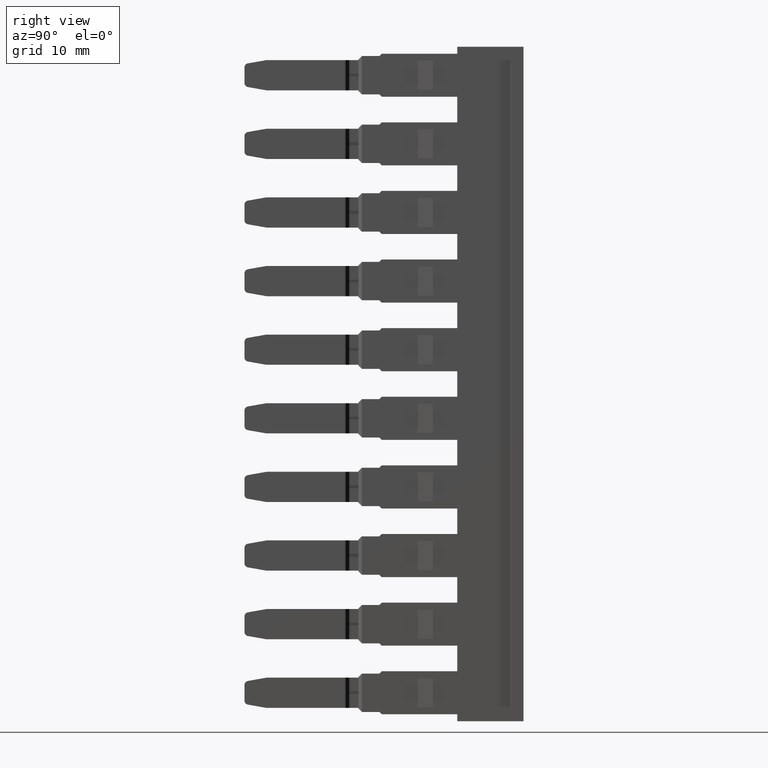
[diagram: clean part render]
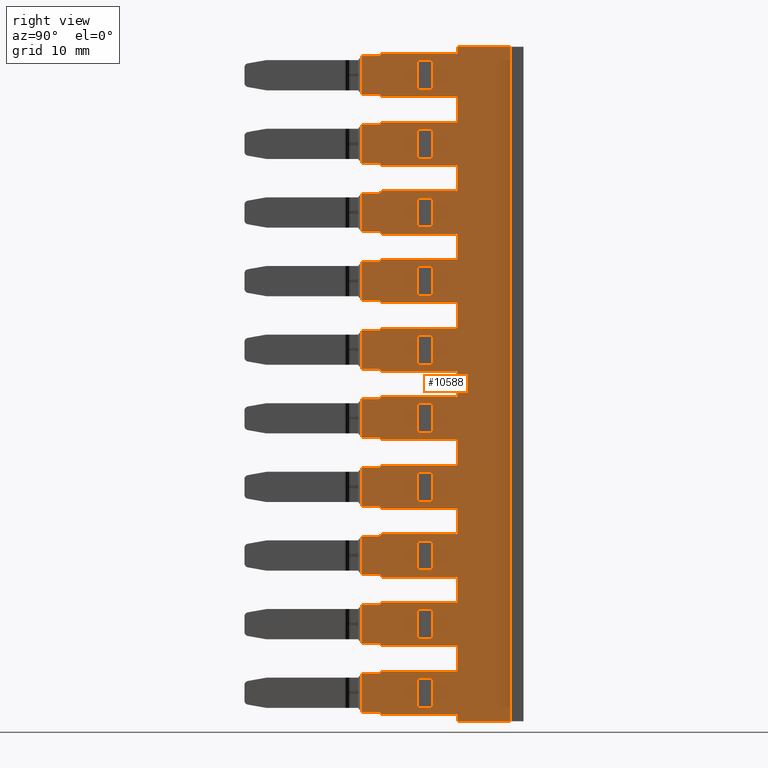
[diagram: same view with one face highlighted and labeled with its STEP entity id]
A machine part, right view. The second image highlights one B-rep face of the part: STEP entity #10588.
In plain terms, the highlighted planar face has unit normal (-1, 0, 0).
Its self-contained STEP definition (entity closure, byte-faithful):
#995 = VERTEX_POINT ( 'NONE', #4723 ) ;
#996 = VERTEX_POINT ( 'NONE', #4745 ) ;
#1009 = VERTEX_POINT ( 'NONE', #4746 ) ;
#1010 = VERTEX_POINT ( 'NONE', #4735 ) ;
#1032 = VERTEX_POINT ( 'NONE', #4751 ) ;
#1057 = VERTEX_POINT ( 'NONE', #4779 ) ;
#1061 = VERTEX_POINT ( 'NONE', #4807 ) ;
#1067 = VERTEX_POINT ( 'NONE', #4811 ) ;
#1068 = VERTEX_POINT ( 'NONE', #4836 ) ;
#1070 = VERTEX_POINT ( 'NONE', #4839 ) ;
#1074 = VERTEX_POINT ( 'NONE', #4825 ) ;
#1076 = VERTEX_POINT ( 'NONE', #4830 ) ;
#1086 = VERTEX_POINT ( 'NONE', #4801 ) ;
#1087 = VERTEX_POINT ( 'NONE', #4817 ) ;
#1093 = VERTEX_POINT ( 'NONE', #4804 ) ;
#1102 = VERTEX_POINT ( 'NONE', #4785 ) ;
#1104 = VERTEX_POINT ( 'NONE', #4789 ) ;
#1105 = VERTEX_POINT ( 'NONE', #4792 ) ;
#1362 = VECTOR ( 'NONE', #11860, 1000.000000000000000 ) ;
#1439 = VECTOR ( 'NONE', #11802, 1000.000000000000000 ) ;
#1485 = VECTOR ( 'NONE', #11811, 1000.000000000000000 ) ;
#1487 = VECTOR ( 'NONE', #11875, 1000.000000000000000 ) ;
#1528 = VECTOR ( 'NONE', #6391, 1000.000000000000000 ) ;
#1529 = VECTOR ( 'NONE', #6400, 1000.000000000000000 ) ;
#1540 = VECTOR ( 'NONE', #12433, 1000.000000000000000 ) ;
#1544 = VECTOR ( 'NONE', #11807, 1000.000000000000000 ) ;
#1557 = VECTOR ( 'NONE', #12543, 1000.000000000000000 ) ;
#1566 = VECTOR ( 'NONE', #12463, 1000.000000000000000 ) ;
#1567 = VECTOR ( 'NONE', #12490, 1000.000000000000000 ) ;
#1572 = VECTOR ( 'NONE', #12579, 1000.000000000000000 ) ;
#1586 = VECTOR ( 'NONE', #12552, 1000.000000000000000 ) ;
#1590 = VECTOR ( 'NONE', #11814, 1000.000000000000000 ) ;
#1595 = VECTOR ( 'NONE', #12553, 1000.000000000000000 ) ;
#1596 = VECTOR ( 'NONE', #12485, 1000.000000000000000 ) ;
#1597 = VECTOR ( 'NONE', #12486, 1000.000000000000000 ) ;
#1599 = VECTOR ( 'NONE', #12551, 1000.000000000000000 ) ;
#1600 = VECTOR ( 'NONE', #11882, 1000.000000000000000 ) ;
#1602 = VECTOR ( 'NONE', #12559, 1000.000000000000000 ) ;
#1603 = VECTOR ( 'NONE', #12467, 1000.000000000000000 ) ;
#1604 = VECTOR ( 'NONE', #11819, 1000.000000000000000 ) ;
#1606 = VECTOR ( 'NONE', #11888, 1000.000000000000000 ) ;
#1608 = VECTOR ( 'NONE', #11831, 1000.000000000000000 ) ;
#1611 = VECTOR ( 'NONE', #12548, 1000.000000000000000 ) ;
#1614 = VECTOR ( 'NONE', #12605, 1000.000000000000000 ) ;
#1622 = VECTOR ( 'NONE', #12672, 1000.000000000000000 ) ;
#1625 = VECTOR ( 'NONE', #12601, 1000.000000000000000 ) ;
#1626 = VECTOR ( 'NONE', #12600, 1000.000000000000000 ) ;
#1634 = VECTOR ( 'NONE', #11858, 1000.000000000000000 ) ;
#1643 = VECTOR ( 'NONE', #12713, 1000.000000000000000 ) ;
#1649 = VECTOR ( 'NONE', #12602, 1000.000000000000000 ) ;
#1653 = VECTOR ( 'NONE', #11786, 1000.000000000000000 ) ;
#1654 = VECTOR ( 'NONE', #11777, 1000.000000000000000 ) ;
#1655 = VECTOR ( 'NONE', #12680, 1000.000000000000000 ) ;
#1657 = VECTOR ( 'NONE', #12726, 1000.000000000000000 ) ;
#1658 = VECTOR ( 'NONE', #12705, 1000.000000000000000 ) ;
#1660 = VECTOR ( 'NONE', #12743, 1000.000000000000000 ) ;
#1662 = VECTOR ( 'NONE', #12717, 1000.000000000000000 ) ;
#1664 = VECTOR ( 'NONE', #12690, 1000.000000000000000 ) ;
#1666 = VECTOR ( 'NONE', #12709, 1000.000000000000000 ) ;
#1668 = VECTOR ( 'NONE', #12706, 1000.000000000000000 ) ;
#1669 = VECTOR ( 'NONE', #11867, 1000.000000000000000 ) ;
#1670 = VECTOR ( 'NONE', #12737, 1000.000000000000000 ) ;
#1671 = VECTOR ( 'NONE', #11762, 1000.000000000000000 ) ;
#1672 = VECTOR ( 'NONE', #12741, 1000.000000000000000 ) ;
#1673 = VECTOR ( 'NONE', #11797, 1000.000000000000000 ) ;
#1675 = VECTOR ( 'NONE', #11787, 1000.000000000000000 ) ;
#1679 = VECTOR ( 'NONE', #11775, 1000.000000000000000 ) ;
#1681 = VECTOR ( 'NONE', #11769, 1000.000000000000000 ) ;
#1682 = VECTOR ( 'NONE', #11851, 1000.000000000000000 ) ;
#1684 = VECTOR ( 'NONE', #11790, 1000.000000000000000 ) ;
#1690 = VECTOR ( 'NONE', #11805, 1000.000000000000000 ) ;
#1720 = VECTOR ( 'NONE', #11892, 1000.000000000000000 ) ;
#1739 = VECTOR ( 'NONE', #11894, 1000.000000000000000 ) ;
#1763 = VECTOR ( 'NONE', #11835, 1000.000000000000000 ) ;
#1769 = VECTOR ( 'NONE', #11836, 1000.000000000000000 ) ;
#1828 = VECTOR ( 'NONE', #11877, 1000.000000000000000 ) ;
#1889 = VECTOR ( 'NONE', #11821, 1000.000000000000000 ) ;
#1899 = VECTOR ( 'NONE', #11848, 1000.000000000000000 ) ;
#1940 = VECTOR ( 'NONE', #11828, 1000.000000000000000 ) ;
#1977 = VECTOR ( 'NONE', #11843, 1000.000000000000000 ) ;
#1991 = VECTOR ( 'NONE', #11895, 1000.000000000000000 ) ;
#2053 = VECTOR ( 'NONE', #11820, 1000.000000000000000 ) ;
#2791 = EDGE_CURVE ( 'NONE', #1093, #1076, #6429, .T. ) ;
#2792 = EDGE_CURVE ( 'NONE', #1074, #995, #6445, .T. ) ;
#2822 = EDGE_CURVE ( 'NONE', #1009, #1010, #12427, .T. ) ;
#2829 = EDGE_CURVE ( 'NONE', #1102, #1070, #12449, .T. ) ;
#2830 = EDGE_CURVE ( 'NONE', #1105, #1104, #12461, .T. ) ;
#2834 = EDGE_CURVE ( 'NONE', #1032, #996, #12446, .T. ) ;
#2835 = EDGE_CURVE ( 'NONE', #8590, #1086, #12451, .T. ) ;
#2851 = EDGE_CURVE ( 'NONE', #8577, #8599, #12527, .T. ) ;
#2857 = EDGE_CURVE ( 'NONE', #8568, #1093, #12501, .T. ) ;
#2859 = EDGE_CURVE ( 'NONE', #1068, #1087, #12572, .T. ) ;
#2860 = EDGE_CURVE ( 'NONE', #8553, #8574, #12500, .T. ) ;
#2862 = EDGE_CURVE ( 'NONE', #8547, #8580, #12554, .T. ) ;
#2868 = EDGE_CURVE ( 'NONE', #8581, #1057, #12584, .T. ) ;
#2869 = EDGE_CURVE ( 'NONE', #8599, #8575, #12540, .T. ) ;
#2872 = EDGE_CURVE ( 'NONE', #8554, #8593, #12563, .T. ) ;
#2878 = EDGE_CURVE ( 'NONE', #8565, #8549, #12608, .T. ) ;
#2880 = EDGE_CURVE ( 'NONE', #8587, #8549, #12626, .T. ) ;
#2881 = EDGE_CURVE ( 'NONE', #8568, #7279, #12599, .T. ) ;
#2882 = EDGE_CURVE ( 'NONE', #8594, #8591, #12603, .T. ) ;
#2895 = EDGE_CURVE ( 'NONE', #8552, #8565, #12632, .T. ) ;
#2905 = EDGE_CURVE ( 'NONE', #8556, #8575, #12647, .T. ) ;
#2909 = EDGE_CURVE ( 'NONE', #1067, #1086, #12696, .T. ) ;
#2913 = EDGE_CURVE ( 'NONE', #8595, #8594, #12682, .T. ) ;
#2915 = EDGE_CURVE ( 'NONE', #7292, #7305, #12692, .T. ) ;
#2916 = EDGE_CURVE ( 'NONE', #7286, #7287, #12715, .T. ) ;
#2917 = EDGE_CURVE ( 'NONE', #8564, #8556, #12678, .T. ) ;
#2918 = EDGE_CURVE ( 'NONE', #8577, #1010, #12708, .T. ) ;
#2920 = EDGE_CURVE ( 'NONE', #1061, #8606, #12721, .T. ) ;
#2921 = EDGE_CURVE ( 'NONE', #8584, #1104, #12738, .T. ) ;
#2922 = EDGE_CURVE ( 'NONE', #8606, #1068, #12727, .T. ) ;
#2923 = EDGE_CURVE ( 'NONE', #7295, #7325, #12724, .T. ) ;
#2925 = EDGE_CURVE ( 'NONE', #7316, #7262, #12732, .T. ) ;
#2926 = EDGE_CURVE ( 'NONE', #7272, #7283, #12739, .T. ) ;
#2927 = EDGE_CURVE ( 'NONE', #7272, #7270, #11789, .T. ) ;
#2928 = EDGE_CURVE ( 'NONE', #7321, #7314, #12728, .T. ) ;
#2929 = EDGE_CURVE ( 'NONE', #7308, #1070, #12729, .T. ) ;
#2934 = EDGE_CURVE ( 'NONE', #8593, #1067, #11767, .T. ) ;
#2935 = EDGE_CURVE ( 'NONE', #8558, #8601, #11796, .T. ) ;
#2938 = EDGE_CURVE ( 'NONE', #7279, #8591, #11763, .T. ) ;
#2939 = EDGE_CURVE ( 'NONE', #8554, #8587, #11770, .T. ) ;
#2940 = EDGE_CURVE ( 'NONE', #8547, #1087, #11840, .T. ) ;
#2941 = EDGE_CURVE ( 'NONE', #8550, #8574, #11827, .T. ) ;
#2942 = EDGE_CURVE ( 'NONE', #7280, #8586, #11838, .T. ) ;
#2943 = EDGE_CURVE ( 'NONE', #8576, #8564, #11837, .T. ) ;
#2944 = EDGE_CURVE ( 'NONE', #8560, #8583, #11766, .T. ) ;
#2945 = EDGE_CURVE ( 'NONE', #8596, #8590, #11833, .T. ) ;
#2947 = EDGE_CURVE ( 'NONE', #8596, #1061, #11788, .T. ) ;
#2948 = EDGE_CURVE ( 'NONE', #1057, #8573, #11841, .T. ) ;
#2949 = EDGE_CURVE ( 'NONE', #8580, #8550, #11834, .T. ) ;
#2950 = EDGE_CURVE ( 'NONE', #8553, #8576, #11813, .T. ) ;
#2951 = EDGE_CURVE ( 'NONE', #8601, #7303, #11818, .T. ) ;
#2952 = EDGE_CURVE ( 'NONE', #7280, #8583, #11824, .T. ) ;
#2955 = EDGE_CURVE ( 'NONE', #8569, #8595, #11874, .T. ) ;
#2956 = EDGE_CURVE ( 'NONE', #8567, #8573, #11853, .T. ) ;
#2958 = EDGE_CURVE ( 'NONE', #7262, #7311, #11869, .T. ) ;
#2962 = EDGE_CURVE ( 'NONE', #7313, #7319, #11890, .T. ) ;
#2963 = EDGE_CURVE ( 'NONE', #7312, #7301, #11864, .T. ) ;
#2964 = EDGE_CURVE ( 'NONE', #8560, #8569, #11855, .T. ) ;
#2965 = EDGE_CURVE ( 'NONE', #7313, #7292, #11852, .T. ) ;
#2966 = EDGE_CURVE ( 'NONE', #7312, #7295, #11873, .T. ) ;
#2967 = EDGE_CURVE ( 'NONE', #7301, #7325, #11872, .T. ) ;
#2968 = EDGE_CURVE ( 'NONE', #7304, #7323, #11876, .T. ) ;
#2969 = EDGE_CURVE ( 'NONE', #7302, #7320, #11839, .T. ) ;
#2970 = EDGE_CURVE ( 'NONE', #8555, #8552, #11887, .T. ) ;
#2971 = EDGE_CURVE ( 'NONE', #8586, #7303, #11885, .T. ) ;
#2973 = EDGE_CURVE ( 'NONE', #7271, #7318, #11936, .T. ) ;
#2974 = EDGE_CURVE ( 'NONE', #1076, #8555, #11896, .T. ) ;
#2976 = EDGE_CURVE ( 'NONE', #8581, #8567, #11934, .T. ) ;
#2977 = EDGE_CURVE ( 'NONE', #7315, #7296, #11919, .T. ) ;
#2978 = EDGE_CURVE ( 'NONE', #7281, #8566, #11861, .T. ) ;
#2979 = EDGE_CURVE ( 'NONE', #8584, #7302, #11918, .T. ) ;
#2983 = EDGE_CURVE ( 'NONE', #7275, #7284, #11910, .T. ) ;
#2984 = EDGE_CURVE ( 'NONE', #1032, #7290, #11905, .T. ) ;
#2985 = EDGE_CURVE ( 'NONE', #7309, #7311, #11926, .T. ) ;
#2986 = EDGE_CURVE ( 'NONE', #7308, #8570, #11973, .T. ) ;
#2987 = EDGE_CURVE ( 'NONE', #7322, #7324, #11977, .T. ) ;
#2988 = EDGE_CURVE ( 'NONE', #8592, #7285, #11962, .T. ) ;
#2989 = EDGE_CURVE ( 'NONE', #8598, #8589, #11943, .T. ) ;
#2991 = EDGE_CURVE ( 'NONE', #8579, #8592, #11967, .T. ) ;
#2993 = EDGE_CURVE ( 'NONE', #7297, #7289, #11913, .T. ) ;
#2994 = EDGE_CURVE ( 'NONE', #8570, #8589, #11974, .T. ) ;
#2995 = EDGE_CURVE ( 'NONE', #7269, #8598, #11944, .T. ) ;
#2996 = EDGE_CURVE ( 'NONE', #1074, #7282, #11942, .T. ) ;
#2997 = EDGE_CURVE ( 'NONE', #7282, #7269, #11980, .T. ) ;
#2998 = EDGE_CURVE ( 'NONE', #7310, #7277, #11954, .T. ) ;
#3001 = EDGE_CURVE ( 'NONE', #8566, #8582, #12017, .T. ) ;
#3002 = EDGE_CURVE ( 'NONE', #7318, #7287, #12000, .T. ) ;
#3003 = EDGE_CURVE ( 'NONE', #8548, #8559, #11981, .T. ) ;
#3004 = EDGE_CURVE ( 'NONE', #7283, #7294, #12024, .T. ) ;
#3005 = EDGE_CURVE ( 'NONE', #8548, #7273, #12019, .T. ) ;
#3006 = EDGE_CURVE ( 'NONE', #7273, #8558, #11994, .T. ) ;
#3007 = EDGE_CURVE ( 'NONE', #7265, #7364, #11998, .T. ) ;
#3009 = EDGE_CURVE ( 'NONE', #1009, #7304, #11948, .T. ) ;
#3010 = EDGE_CURVE ( 'NONE', #1102, #7281, #12025, .T. ) ;
#3012 = EDGE_CURVE ( 'NONE', #7296, #7263, #12002, .T. ) ;
#3014 = EDGE_CURVE ( 'NONE', #7316, #7309, #11988, .T. ) ;
#3015 = EDGE_CURVE ( 'NONE', #8582, #7285, #12045, .T. ) ;
#3016 = EDGE_CURVE ( 'NONE', #7271, #7286, #12069, .T. ) ;
#3017 = EDGE_CURVE ( 'NONE', #7288, #7297, #12039, .T. ) ;
#3019 = EDGE_CURVE ( 'NONE', #7315, #7264, #12060, .T. ) ;
#3021 = EDGE_CURVE ( 'NONE', #8579, #8559, #11989, .T. ) ;
#3022 = EDGE_CURVE ( 'NONE', #7319, #7305, #12040, .T. ) ;
#3023 = EDGE_CURVE ( 'NONE', #8563, #995, #12052, .T. ) ;
#3024 = EDGE_CURVE ( 'NONE', #7275, #996, #12064, .T. ) ;
#3025 = EDGE_CURVE ( 'NONE', #7291, #7274, #12053, .T. ) ;
#3026 = EDGE_CURVE ( 'NONE', #7270, #7294, #12056, .T. ) ;
#3027 = EDGE_CURVE ( 'NONE', #7290, #7291, #12067, .T. ) ;
#3028 = EDGE_CURVE ( 'NONE', #7284, #7314, #12029, .T. ) ;
#3029 = EDGE_CURVE ( 'NONE', #7274, #7320, #12032, .T. ) ;
#3031 = EDGE_CURVE ( 'NONE', #8563, #7322, #12005, .T. ) ;
#3032 = EDGE_CURVE ( 'NONE', #7289, #7324, #12106, .T. ) ;
#3036 = EDGE_CURVE ( 'NONE', #1105, #7288, #12101, .T. ) ;
#3037 = EDGE_CURVE ( 'NONE', #7323, #7321, #12076, .T. ) ;
#3045 = EDGE_CURVE ( 'NONE', #7335, #7333, #12095, .T. ) ;
#3050 = EDGE_CURVE ( 'NONE', #7317, #7265, #12141, .T. ) ;
#3057 = EDGE_CURVE ( 'NONE', #7317, #7338, #12132, .T. ) ;
#3059 = EDGE_CURVE ( 'NONE', #7375, #7343, #12163, .T. ) ;
#3063 = EDGE_CURVE ( 'NONE', #7264, #7263, #12218, .T. ) ;
#3069 = EDGE_CURVE ( 'NONE', #7338, #7364, #12215, .T. ) ;
#3077 = EDGE_CURVE ( 'NONE', #7267, #7375, #12178, .T. ) ;
#3083 = EDGE_CURVE ( 'NONE', #7277, #7333, #12250, .T. ) ;
#3091 = EDGE_CURVE ( 'NONE', #7310, #7335, #12256, .T. ) ;
#3092 = EDGE_CURVE ( 'NONE', #7267, #7299, #12237, .T. ) ;
#3102 = EDGE_CURVE ( 'NONE', #7299, #7343, #12309, .T. ) ;
#4147 = ORIENTED_EDGE ( 'NONE', *, *, #3024, .F. ) ;
#4148 = ORIENTED_EDGE ( 'NONE', *, *, #2928, .F. ) ;
#4149 = ORIENTED_EDGE ( 'NONE', *, *, #2921, .F. ) ;
#4150 = ORIENTED_EDGE ( 'NONE', *, *, #2942, .T. ) ;
#4151 = ORIENTED_EDGE ( 'NONE', *, *, #2984, .F. ) ;
#4152 = ORIENTED_EDGE ( 'NONE', *, *, #2851, .T. ) ;
#4153 = ORIENTED_EDGE ( 'NONE', *, *, #2986, .T. ) ;
#4154 = ORIENTED_EDGE ( 'NONE', *, *, #2880, .T. ) ;
#4155 = ORIENTED_EDGE ( 'NONE', *, *, #3028, .T. ) ;
#4156 = ORIENTED_EDGE ( 'NONE', *, *, #3005, .F. ) ;
#4157 = ORIENTED_EDGE ( 'NONE', *, *, #2969, .T. ) ;
#4158 = ORIENTED_EDGE ( 'NONE', *, *, #2950, .F. ) ;
#4159 = ORIENTED_EDGE ( 'NONE', *, *, #2920, .F. ) ;
#4160 = ORIENTED_EDGE ( 'NONE', *, *, #3031, .T. ) ;
#4161 = ORIENTED_EDGE ( 'NONE', *, *, #2822, .T. ) ;
#4162 = ORIENTED_EDGE ( 'NONE', *, *, #2971, .T. ) ;
#4163 = ORIENTED_EDGE ( 'NONE', *, *, #3025, .F. ) ;
#4164 = ORIENTED_EDGE ( 'NONE', *, *, #2970, .F. ) ;
#4165 = ORIENTED_EDGE ( 'NONE', *, *, #2895, .F. ) ;
#4166 = ORIENTED_EDGE ( 'NONE', *, *, #2938, .T. ) ;
#4167 = ORIENTED_EDGE ( 'NONE', *, *, #2860, .T. ) ;
#4168 = ORIENTED_EDGE ( 'NONE', *, *, #2955, .F. ) ;
#4169 = ORIENTED_EDGE ( 'NONE', *, *, #2918, .F. ) ;
#4170 = ORIENTED_EDGE ( 'NONE', *, *, #2881, .T. ) ;
#4171 = ORIENTED_EDGE ( 'NONE', *, *, #2951, .F. ) ;
#4172 = ORIENTED_EDGE ( 'NONE', *, *, #3010, .F. ) ;
#4173 = ORIENTED_EDGE ( 'NONE', *, *, #2935, .F. ) ;
#4174 = ORIENTED_EDGE ( 'NONE', *, *, #2943, .F. ) ;
#4176 = ORIENTED_EDGE ( 'NONE', *, *, #2952, .F. ) ;
#4177 = ORIENTED_EDGE ( 'NONE', *, *, #2872, .F. ) ;
#4178 = ORIENTED_EDGE ( 'NONE', *, *, #2857, .F. ) ;
#4179 = ORIENTED_EDGE ( 'NONE', *, *, #2964, .F. ) ;
#4180 = ORIENTED_EDGE ( 'NONE', *, *, #2978, .F. ) ;
#4181 = ORIENTED_EDGE ( 'NONE', *, *, #2929, .F. ) ;
#4182 = ORIENTED_EDGE ( 'NONE', *, *, #3017, .F. ) ;
#4183 = ORIENTED_EDGE ( 'NONE', *, *, #3032, .F. ) ;
#4184 = ORIENTED_EDGE ( 'NONE', *, *, #3029, .F. ) ;
#4185 = ORIENTED_EDGE ( 'NONE', *, *, #3027, .F. ) ;
#4186 = ORIENTED_EDGE ( 'NONE', *, *, #2882, .F. ) ;
#4187 = ORIENTED_EDGE ( 'NONE', *, *, #2869, .T. ) ;
#4188 = ORIENTED_EDGE ( 'NONE', *, *, #2974, .F. ) ;
#4189 = ORIENTED_EDGE ( 'NONE', *, *, #2983, .T. ) ;
#4190 = ORIENTED_EDGE ( 'NONE', *, *, #2834, .T. ) ;
#4191 = ORIENTED_EDGE ( 'NONE', *, *, #3036, .F. ) ;
#4192 = ORIENTED_EDGE ( 'NONE', *, *, #2991, .T. ) ;
#4193 = ORIENTED_EDGE ( 'NONE', *, *, #2878, .F. ) ;
#4194 = ORIENTED_EDGE ( 'NONE', *, *, #2941, .F. ) ;
#4195 = ORIENTED_EDGE ( 'NONE', *, *, #2944, .T. ) ;
#4196 = ORIENTED_EDGE ( 'NONE', *, *, #2835, .T. ) ;
#4197 = ORIENTED_EDGE ( 'NONE', *, *, #3037, .F. ) ;
#4198 = ORIENTED_EDGE ( 'NONE', *, *, #3003, .T. ) ;
#4199 = ORIENTED_EDGE ( 'NONE', *, *, #2979, .T. ) ;
#4200 = ORIENTED_EDGE ( 'NONE', *, *, #2791, .F. ) ;
#4201 = ORIENTED_EDGE ( 'NONE', *, *, #2909, .F. ) ;
#4203 = ORIENTED_EDGE ( 'NONE', *, *, #3021, .F. ) ;
#4204 = ORIENTED_EDGE ( 'NONE', *, *, #2862, .F. ) ;
#4205 = ORIENTED_EDGE ( 'NONE', *, *, #2922, .F. ) ;
#4206 = ORIENTED_EDGE ( 'NONE', *, *, #2988, .T. ) ;
#4207 = ORIENTED_EDGE ( 'NONE', *, *, #2940, .T. ) ;
#4208 = ORIENTED_EDGE ( 'NONE', *, *, #2939, .T. ) ;
#4209 = ORIENTED_EDGE ( 'NONE', *, *, #2829, .T. ) ;
#4210 = ORIENTED_EDGE ( 'NONE', *, *, #2993, .F. ) ;
#4211 = ORIENTED_EDGE ( 'NONE', *, *, #3019, .F. ) ;
#4212 = ORIENTED_EDGE ( 'NONE', *, *, #3069, .T. ) ;
#4213 = ORIENTED_EDGE ( 'NONE', *, *, #3045, .T. ) ;
#4215 = ORIENTED_EDGE ( 'NONE', *, *, #3063, .F. ) ;
#4216 = ORIENTED_EDGE ( 'NONE', *, *, #2962, .F. ) ;
#4220 = ORIENTED_EDGE ( 'NONE', *, *, #3026, .T. ) ;
#4221 = ORIENTED_EDGE ( 'NONE', *, *, #2976, .T. ) ;
#4223 = ORIENTED_EDGE ( 'NONE', *, *, #3002, .F. ) ;
#4224 = ORIENTED_EDGE ( 'NONE', *, *, #3004, .F. ) ;
#4225 = ORIENTED_EDGE ( 'NONE', *, *, #2956, .T. ) ;
#4226 = ORIENTED_EDGE ( 'NONE', *, *, #3012, .T. ) ;
#4227 = ORIENTED_EDGE ( 'NONE', *, *, #2927, .T. ) ;
#4232 = ORIENTED_EDGE ( 'NONE', *, *, #2926, .F. ) ;
#4233 = ORIENTED_EDGE ( 'NONE', *, *, #2925, .T. ) ;
#4235 = ORIENTED_EDGE ( 'NONE', *, *, #3059, .T. ) ;
#4237 = ORIENTED_EDGE ( 'NONE', *, *, #2985, .F. ) ;
#4239 = ORIENTED_EDGE ( 'NONE', *, *, #2958, .T. ) ;
#4240 = ORIENTED_EDGE ( 'NONE', *, *, #2916, .T. ) ;
#4241 = ORIENTED_EDGE ( 'NONE', *, *, #2968, .F. ) ;
#4242 = ORIENTED_EDGE ( 'NONE', *, *, #2923, .T. ) ;
#4243 = ORIENTED_EDGE ( 'NONE', *, *, #3077, .T. ) ;
#4245 = ORIENTED_EDGE ( 'NONE', *, *, #3102, .F. ) ;
#4246 = ORIENTED_EDGE ( 'NONE', *, *, #2973, .F. ) ;
#4248 = ORIENTED_EDGE ( 'NONE', *, *, #2963, .F. ) ;
#4249 = ORIENTED_EDGE ( 'NONE', *, *, #2948, .F. ) ;
#4250 = ORIENTED_EDGE ( 'NONE', *, *, #3014, .F. ) ;
#4251 = ORIENTED_EDGE ( 'NONE', *, *, #2915, .T. ) ;
#4253 = ORIENTED_EDGE ( 'NONE', *, *, #3009, .F. ) ;
#4254 = ORIENTED_EDGE ( 'NONE', *, *, #2966, .T. ) ;
#4256 = ORIENTED_EDGE ( 'NONE', *, *, #3050, .F. ) ;
#4258 = ORIENTED_EDGE ( 'NONE', *, *, #2830, .T. ) ;
#4259 = ORIENTED_EDGE ( 'NONE', *, *, #3057, .T. ) ;
#4260 = ORIENTED_EDGE ( 'NONE', *, *, #3007, .F. ) ;
#4261 = ORIENTED_EDGE ( 'NONE', *, *, #3092, .F. ) ;
#4262 = ORIENTED_EDGE ( 'NONE', *, *, #2987, .T. ) ;
#4263 = ORIENTED_EDGE ( 'NONE', *, *, #2967, .F. ) ;
#4265 = ORIENTED_EDGE ( 'NONE', *, *, #3016, .T. ) ;
#4267 = ORIENTED_EDGE ( 'NONE', *, *, #3022, .F. ) ;
#4269 = ORIENTED_EDGE ( 'NONE', *, *, #2868, .F. ) ;
#4271 = ORIENTED_EDGE ( 'NONE', *, *, #2998, .F. ) ;
#4272 = ORIENTED_EDGE ( 'NONE', *, *, #3091, .T. ) ;
#4273 = ORIENTED_EDGE ( 'NONE', *, *, #2977, .T. ) ;
#4274 = ORIENTED_EDGE ( 'NONE', *, *, #2965, .T. ) ;
#4292 = ORIENTED_EDGE ( 'NONE', *, *, #3083, .F. ) ;
#4723 = CARTESIAN_POINT ( 'NONE',  ( 1459.267071211366600, 1003.994679537495200, -113.0499999999890400 ) ) ;
#4735 = CARTESIAN_POINT ( 'NONE',  ( 1459.267071211366300, 1003.994679537464800, -130.7499999999889700 ) ) ;
#4745 = CARTESIAN_POINT ( 'NONE',  ( 1459.267071211366600, 1003.994679537494100, -124.8499999999890400 ) ) ;
#4746 = CARTESIAN_POINT ( 'NONE',  ( 1459.267071211366600, 1003.994679537462600, -128.5499999999868800 ) ) ;
#4751 = CARTESIAN_POINT ( 'NONE',  ( 1459.267071211366600, 1003.994679537469400, -122.6499999999868600 ) ) ;
#4779 = CARTESIAN_POINT ( 'NONE',  ( 1459.267071211366600, 1001.892679537514000, -78.25000000009424600 ) ) ;
#4785 = CARTESIAN_POINT ( 'NONE',  ( 1459.267071211366600, 1003.994679537490400, -104.9499999999868600 ) ) ;
#4789 = CARTESIAN_POINT ( 'NONE',  ( 1459.267071211366600, 1003.994679537494800, -118.9499999999890300 ) ) ;
#4792 = CARTESIAN_POINT ( 'NONE',  ( 1459.267071211366600, 1003.994679537476400, -116.7499999999868700 ) ) ;
#4801 = CARTESIAN_POINT ( 'NONE',  ( 1459.267071211366300, 997.4946795375179800, -81.34999999999136800 ) ) ;
#4804 = CARTESIAN_POINT ( 'NONE',  ( 1459.267071211366300, 1003.994679537513400, -89.44999999998897500 ) ) ;
#4807 = CARTESIAN_POINT ( 'NONE',  ( 1459.267071211366300, 995.7926795375192300, -77.84999999999011800 ) ) ;
#4811 = CARTESIAN_POINT ( 'NONE',  ( 1459.267071211366600, 1003.994679537520100, -81.34999999999109800 ) ) ;
#4817 = CARTESIAN_POINT ( 'NONE',  ( 1459.267071211366300, 1003.994679537510600, -77.64999999999319900 ) ) ;
#4825 = CARTESIAN_POINT ( 'NONE',  ( 1459.267071211366600, 1003.994679537483400, -110.8499999999868800 ) ) ;
#4830 = CARTESIAN_POINT ( 'NONE',  ( 1459.267071211366600, 1003.994679537511200, -87.24999999998686900 ) ) ;
#4836 = CARTESIAN_POINT ( 'NONE',  ( 1459.267071211366300, 997.4946795375173000, -77.64999999999273000 ) ) ;
#4839 = CARTESIAN_POINT ( 'NONE',  ( 1459.267071211366600, 1003.994679537495900, -107.1499999999890500 ) ) ;
#5304 = ORIENTED_EDGE ( 'NONE', *, *, #2994, .T. ) ;
#5309 = ORIENTED_EDGE ( 'NONE', *, *, #2949, .F. ) ;
#5312 = ORIENTED_EDGE ( 'NONE', *, *, #2792, .T. ) ;
#5319 = ORIENTED_EDGE ( 'NONE', *, *, #2995, .F. ) ;
#5320 = ORIENTED_EDGE ( 'NONE', *, *, #3006, .F. ) ;
#5322 = ORIENTED_EDGE ( 'NONE', *, *, #2996, .F. ) ;
#5324 = ORIENTED_EDGE ( 'NONE', *, *, #2917, .F. ) ;
#5325 = ORIENTED_EDGE ( 'NONE', *, *, #2997, .F. ) ;
#5331 = ORIENTED_EDGE ( 'NONE', *, *, #2934, .F. ) ;
#5332 = ORIENTED_EDGE ( 'NONE', *, *, #2913, .F. ) ;
#5340 = ORIENTED_EDGE ( 'NONE', *, *, #3015, .F. ) ;
#5341 = ORIENTED_EDGE ( 'NONE', *, *, #2989, .F. ) ;
#5344 = ORIENTED_EDGE ( 'NONE', *, *, #3001, .F. ) ;
#5345 = ORIENTED_EDGE ( 'NONE', *, *, #2945, .T. ) ;
#5351 = ORIENTED_EDGE ( 'NONE', *, *, #3023, .F. ) ;
#5353 = ORIENTED_EDGE ( 'NONE', *, *, #2905, .F. ) ;
#5354 = ORIENTED_EDGE ( 'NONE', *, *, #2859, .F. ) ;
#5355 = ORIENTED_EDGE ( 'NONE', *, *, #2947, .F. ) ;
#6172 = FACE_BOUND ( 'NONE', #8083, .T. ) ;
#6176 = FACE_BOUND ( 'NONE', #8111, .T. ) ;
#6190 = FACE_OUTER_BOUND ( 'NONE', #8144, .T. ) ;
#6192 = FACE_BOUND ( 'NONE', #8073, .T. ) ;
#6194 = FACE_BOUND ( 'NONE', #8101, .T. ) ;
#6195 = FACE_BOUND ( 'NONE', #8048, .T. ) ;
#6197 = FACE_BOUND ( 'NONE', #8069, .T. ) ;
#6209 = FACE_BOUND ( 'NONE', #8047, .T. ) ;
#6211 = FACE_BOUND ( 'NONE', #8055, .T. ) ;
#6257 = FACE_BOUND ( 'NONE', #8134, .T. ) ;
#6258 = FACE_BOUND ( 'NONE', #8103, .T. ) ;
#6289 = PLANE ( 'NONE',  #13550 ) ;
#6300 = CARTESIAN_POINT ( 'NONE',  ( 1459.267071211366600, 1007.642679537518000, -100.1158559843420100 ) ) ;
#6306 = DIRECTION ( 'NONE',  ( -1.000000000000000000, 1.280238727656624100E-014, 8.167936110773030400E-029 ) ) ;
#6391 = DIRECTION ( 'NONE',  ( -1.067337078129073100E-025, -9.281390519505110500E-014, -1.000000000000000000 ) ) ;
#6394 = DIRECTION ( 'NONE',  ( -1.280238727656624100E-014, -1.000000000000000000, 0.0000000000000000000 ) ) ;
#6400 = DIRECTION ( 'NONE',  ( 8.167936110773030400E-029, -1.045690813403665900E-042, 1.000000000000000000 ) ) ;
#6429 = LINE ( 'NONE', #6437, #1529 ) ;
#6431 = CARTESIAN_POINT ( 'NONE',  ( 1459.267071211366600, 1003.994679537496500, -99.64999999998701700 ) ) ;
#6437 = CARTESIAN_POINT ( 'NONE',  ( 1459.267071211366600, 1003.994679537520300, -100.1158559843420100 ) ) ;
#6445 = LINE ( 'NONE', #6431, #1528 ) ;
#7262 = VERTEX_POINT ( 'NONE', #8757 ) ;
#7263 = VERTEX_POINT ( 'NONE', #8771 ) ;
#7264 = VERTEX_POINT ( 'NONE', #8767 ) ;
#7265 = VERTEX_POINT ( 'NONE', #8772 ) ;
#7267 = VERTEX_POINT ( 'NONE', #8768 ) ;
#7269 = VERTEX_POINT ( 'NONE', #8761 ) ;
#7270 = VERTEX_POINT ( 'NONE', #8784 ) ;
#7271 = VERTEX_POINT ( 'NONE', #8741 ) ;
#7272 = VERTEX_POINT ( 'NONE', #8737 ) ;
#7273 = VERTEX_POINT ( 'NONE', #8746 ) ;
#7274 = VERTEX_POINT ( 'NONE', #8738 ) ;
#7275 = VERTEX_POINT ( 'NONE', #8774 ) ;
#7277 = VERTEX_POINT ( 'NONE', #8753 ) ;
#7279 = VERTEX_POINT ( 'NONE', #8750 ) ;
#7280 = VERTEX_POINT ( 'NONE', #8776 ) ;
#7281 = VERTEX_POINT ( 'NONE', #8749 ) ;
#7282 = VERTEX_POINT ( 'NONE', #8751 ) ;
#7283 = VERTEX_POINT ( 'NONE', #8754 ) ;
#7284 = VERTEX_POINT ( 'NONE', #8755 ) ;
#7285 = VERTEX_POINT ( 'NONE', #8756 ) ;
#7286 = VERTEX_POINT ( 'NONE', #8760 ) ;
#7287 = VERTEX_POINT ( 'NONE', #8762 ) ;
#7288 = VERTEX_POINT ( 'NONE', #8763 ) ;
#7289 = VERTEX_POINT ( 'NONE', #8808 ) ;
#7290 = VERTEX_POINT ( 'NONE', #8834 ) ;
#7291 = VERTEX_POINT ( 'NONE', #8806 ) ;
#7292 = VERTEX_POINT ( 'NONE', #8815 ) ;
#7294 = VERTEX_POINT ( 'NONE', #8816 ) ;
#7295 = VERTEX_POINT ( 'NONE', #8798 ) ;
#7296 = VERTEX_POINT ( 'NONE', #8803 ) ;
#7297 = VERTEX_POINT ( 'NONE', #8801 ) ;
#7299 = VERTEX_POINT ( 'NONE', #8797 ) ;
#7301 = VERTEX_POINT ( 'NONE', #8799 ) ;
#7302 = VERTEX_POINT ( 'NONE', #8809 ) ;
#7303 = VERTEX_POINT ( 'NONE', #8832 ) ;
#7304 = VERTEX_POINT ( 'NONE', #8812 ) ;
#7305 = VERTEX_POINT ( 'NONE', #8827 ) ;
#7308 = VERTEX_POINT ( 'NONE', #8823 ) ;
#7309 = VERTEX_POINT ( 'NONE', #8810 ) ;
#7310 = VERTEX_POINT ( 'NONE', #8800 ) ;
#7311 = VERTEX_POINT ( 'NONE', #8796 ) ;
#7312 = VERTEX_POINT ( 'NONE', #8833 ) ;
#7313 = VERTEX_POINT ( 'NONE', #8837 ) ;
#7314 = VERTEX_POINT ( 'NONE', #8804 ) ;
#7315 = VERTEX_POINT ( 'NONE', #8849 ) ;
#7316 = VERTEX_POINT ( 'NONE', #8805 ) ;
#7317 = VERTEX_POINT ( 'NONE', #8811 ) ;
#7318 = VERTEX_POINT ( 'NONE', #8813 ) ;
#7319 = VERTEX_POINT ( 'NONE', #8814 ) ;
#7320 = VERTEX_POINT ( 'NONE', #8817 ) ;
#7321 = VERTEX_POINT ( 'NONE', #8818 ) ;
#7322 = VERTEX_POINT ( 'NONE', #8835 ) ;
#7323 = VERTEX_POINT ( 'NONE', #8819 ) ;
#7324 = VERTEX_POINT ( 'NONE', #8829 ) ;
#7325 = VERTEX_POINT ( 'NONE', #8825 ) ;
#7333 = VERTEX_POINT ( 'NONE', #8831 ) ;
#7335 = VERTEX_POINT ( 'NONE', #8848 ) ;
#7338 = VERTEX_POINT ( 'NONE', #8842 ) ;
#7343 = VERTEX_POINT ( 'NONE', #8791 ) ;
#7364 = VERTEX_POINT ( 'NONE', #8872 ) ;
#7375 = VERTEX_POINT ( 'NONE', #8904 ) ;
#8047 = EDGE_LOOP ( 'NONE', ( #4211, #4273, #4226, #4215 ) ) ;
#8048 = EDGE_LOOP ( 'NONE', ( #4216, #4274, #4251, #4267 ) ) ;
#8055 = EDGE_LOOP ( 'NONE', ( #4261, #4243, #4235, #4245 ) ) ;
#8069 = EDGE_LOOP ( 'NONE', ( #4256, #4259, #4212, #4260 ) ) ;
#8073 = EDGE_LOOP ( 'NONE', ( #4269, #4221, #4225, #4249 ) ) ;
#8083 = EDGE_LOOP ( 'NONE', ( #4271, #4272, #4213, #4292 ) ) ;
#8101 = EDGE_LOOP ( 'NONE', ( #4250, #4233, #4239, #4237 ) ) ;
#8103 = EDGE_LOOP ( 'NONE', ( #4248, #4254, #4242, #4263 ) ) ;
#8111 = EDGE_LOOP ( 'NONE', ( #4232, #4227, #4220, #4224 ) ) ;
#8134 = EDGE_LOOP ( 'NONE', ( #4246, #4265, #4240, #4223 ) ) ;
#8144 = EDGE_LOOP ( 'NONE', ( #4161, #4169, #4152, #4187, #5353, #5324, #4174, #4158, #4167, #4194, #5309, #4204, #4207, #5354, #4205, #4159, #5355, #5345, #4196, #4201, #5331, #4177, #4208, #4154, #4193, #4165, #4164, #4188, #4200, #4178, #4170, #4166, #4186, #5332, #4168, #4179, #4195, #4176, #4150, #4162, #4171, #4173, #5320, #4156, #4198, #4203, #4192, #4206, #5340, #5344, #4180, #4172, #4209, #4181, #4153, #5304, #5341, #5319, #5325, #5322, #5312, #5351, #4160, #4262, #4183, #4210, #4182, #4191, #4258, #4149, #4199, #4157, #4184, #4163, #4185, #4151, #4190, #4147, #4189, #4155, #4148, #4197, #4241, #4253 ) ) ;
#8547 = VERTEX_POINT ( 'NONE', #9409 ) ;
#8548 = VERTEX_POINT ( 'NONE', #9403 ) ;
#8549 = VERTEX_POINT ( 'NONE', #9429 ) ;
#8550 = VERTEX_POINT ( 'NONE', #9416 ) ;
#8552 = VERTEX_POINT ( 'NONE', #9411 ) ;
#8553 = VERTEX_POINT ( 'NONE', #9404 ) ;
#8554 = VERTEX_POINT ( 'NONE', #9386 ) ;
#8555 = VERTEX_POINT ( 'NONE', #9434 ) ;
#8556 = VERTEX_POINT ( 'NONE', #9406 ) ;
#8558 = VERTEX_POINT ( 'NONE', #9400 ) ;
#8559 = VERTEX_POINT ( 'NONE', #9401 ) ;
#8560 = VERTEX_POINT ( 'NONE', #9391 ) ;
#8563 = VERTEX_POINT ( 'NONE', #9397 ) ;
#8564 = VERTEX_POINT ( 'NONE', #9407 ) ;
#8565 = VERTEX_POINT ( 'NONE', #9408 ) ;
#8566 = VERTEX_POINT ( 'NONE', #9431 ) ;
#8567 = VERTEX_POINT ( 'NONE', #9432 ) ;
#8568 = VERTEX_POINT ( 'NONE', #9433 ) ;
#8569 = VERTEX_POINT ( 'NONE', #9435 ) ;
#8570 = VERTEX_POINT ( 'NONE', #9436 ) ;
#8573 = VERTEX_POINT ( 'NONE', #9423 ) ;
#8574 = VERTEX_POINT ( 'NONE', #9388 ) ;
#8575 = VERTEX_POINT ( 'NONE', #9413 ) ;
#8576 = VERTEX_POINT ( 'NONE', #9398 ) ;
#8577 = VERTEX_POINT ( 'NONE', #9374 ) ;
#8579 = VERTEX_POINT ( 'NONE', #9375 ) ;
#8580 = VERTEX_POINT ( 'NONE', #9376 ) ;
#8581 = VERTEX_POINT ( 'NONE', #9377 ) ;
#8582 = VERTEX_POINT ( 'NONE', #9415 ) ;
#8583 = VERTEX_POINT ( 'NONE', #9417 ) ;
#8584 = VERTEX_POINT ( 'NONE', #9418 ) ;
#8586 = VERTEX_POINT ( 'NONE', #9424 ) ;
#8587 = VERTEX_POINT ( 'NONE', #9380 ) ;
#8589 = VERTEX_POINT ( 'NONE', #9396 ) ;
#8590 = VERTEX_POINT ( 'NONE', #9381 ) ;
#8591 = VERTEX_POINT ( 'NONE', #9399 ) ;
#8592 = VERTEX_POINT ( 'NONE', #9383 ) ;
#8593 = VERTEX_POINT ( 'NONE', #9384 ) ;
#8594 = VERTEX_POINT ( 'NONE', #9385 ) ;
#8595 = VERTEX_POINT ( 'NONE', #9387 ) ;
#8596 = VERTEX_POINT ( 'NONE', #9390 ) ;
#8598 = VERTEX_POINT ( 'NONE', #9395 ) ;
#8599 = VERTEX_POINT ( 'NONE', #9461 ) ;
#8601 = VERTEX_POINT ( 'NONE', #9453 ) ;
#8606 = VERTEX_POINT ( 'NONE', #9477 ) ;
#8737 = CARTESIAN_POINT ( 'NONE',  ( 1459.267071211366600, 1001.892679537514700, -86.65000000009425200 ) ) ;
#8738 = CARTESIAN_POINT ( 'NONE',  ( 1459.267071211366300, 995.7926795374775100, -122.4499999999900000 ) ) ;
#8741 = CARTESIAN_POINT ( 'NONE',  ( 1459.267071211366600, 1001.892679537473000, -122.0500000000942400 ) ) ;
#8746 = CARTESIAN_POINT ( 'NONE',  ( 1459.267071211366300, 997.4946795375033200, -99.04999999998744900 ) ) ;
#8749 = CARTESIAN_POINT ( 'NONE',  ( 1459.267071211366300, 997.4946795374963800, -104.9499999999874400 ) ) ;
#8750 = CARTESIAN_POINT ( 'NONE',  ( 1459.267071211366300, 997.2946795375110000, -89.64999999998836700 ) ) ;
#8751 = CARTESIAN_POINT ( 'NONE',  ( 1459.267071211366300, 997.4946795374894500, -110.8499999999874600 ) ) ;
#8753 = CARTESIAN_POINT ( 'NONE',  ( 1459.267071211366600, 1001.892679537466100, -125.4500000000942600 ) ) ;
#8754 = CARTESIAN_POINT ( 'NONE',  ( 1459.267071211366600, 1001.892679537514700, -84.15000000009425200 ) ) ;
#8755 = CARTESIAN_POINT ( 'NONE',  ( 1459.267071211366300, 997.2946795374693900, -125.0499999999883600 ) ) ;
#8756 = CARTESIAN_POINT ( 'NONE',  ( 1459.267071211366300, 995.7926795374984300, -101.4499999999883800 ) ) ;
#8757 = CARTESIAN_POINT ( 'NONE',  ( 1459.267071211366600, 1000.592679537491100, -110.2500000000942500 ) ) ;
#8760 = CARTESIAN_POINT ( 'NONE',  ( 1459.267071211366600, 1000.592679537477100, -122.0500000000942400 ) ) ;
#8761 = CARTESIAN_POINT ( 'NONE',  ( 1459.267071211366300, 997.2946795374904200, -110.6499999999899400 ) ) ;
#8762 = CARTESIAN_POINT ( 'NONE',  ( 1459.267071211365600, 1000.592679537472900, -119.5500000000942400 ) ) ;
#8763 = CARTESIAN_POINT ( 'NONE',  ( 1459.267071211366300, 997.4946795374825100, -116.7499999999874500 ) ) ;
#8767 = CARTESIAN_POINT ( 'NONE',  ( 1459.267071211366600, 1001.892679537507800, -90.05000000009424400 ) ) ;
#8768 = CARTESIAN_POINT ( 'NONE',  ( 1459.267071211366600, 1001.892679537459200, -133.8500000000942400 ) ) ;
#8771 = CARTESIAN_POINT ( 'NONE',  ( 1459.267071211365600, 1000.592679537507700, -90.05000000009424400 ) ) ;
#8772 = CARTESIAN_POINT ( 'NONE',  ( 1459.267071211366600, 1001.892679537479800, -113.6500000000942500 ) ) ;
#8774 = CARTESIAN_POINT ( 'NONE',  ( 1459.267071211366300, 997.4946795374695500, -124.8499999999886700 ) ) ;
#8776 = CARTESIAN_POINT ( 'NONE',  ( 1459.267071211366300, 997.4946795375042300, -95.34999999998866800 ) ) ;
#8784 = CARTESIAN_POINT ( 'NONE',  ( 1459.267071211366600, 1000.592679537518800, -86.65000000009425200 ) ) ;
#8791 = CARTESIAN_POINT ( 'NONE',  ( 1459.267071211365600, 1000.592679537459200, -131.3500000000942400 ) ) ;
#8796 = CARTESIAN_POINT ( 'NONE',  ( 1459.267071211365600, 1000.592679537486900, -107.7500000000942500 ) ) ;
#8797 = CARTESIAN_POINT ( 'NONE',  ( 1459.267071211366600, 1001.892679537459200, -131.3500000000942400 ) ) ;
#8798 = CARTESIAN_POINT ( 'NONE',  ( 1459.267071211366600, 1000.592679537504900, -98.45000000009424900 ) ) ;
#8799 = CARTESIAN_POINT ( 'NONE',  ( 1459.267071211366600, 1001.892679537500700, -95.95000000009424900 ) ) ;
#8800 = CARTESIAN_POINT ( 'NONE',  ( 1459.267071211366600, 1001.892679537466100, -127.9500000000942600 ) ) ;
#8801 = CARTESIAN_POINT ( 'NONE',  ( 1459.267071211366300, 997.2946795374833800, -116.5499999999899400 ) ) ;
#8803 = CARTESIAN_POINT ( 'NONE',  ( 1459.267071211366600, 1000.592679537511900, -92.55000000009425800 ) ) ;
#8804 = CARTESIAN_POINT ( 'NONE',  ( 1459.267071211366300, 995.7926795374706900, -125.0499999999883900 ) ) ;
#8805 = CARTESIAN_POINT ( 'NONE',  ( 1459.267071211366600, 1001.892679537487000, -110.2500000000942500 ) ) ;
#8806 = CARTESIAN_POINT ( 'NONE',  ( 1459.267071211366300, 997.2946795374764400, -122.4499999999899400 ) ) ;
#8808 = CARTESIAN_POINT ( 'NONE',  ( 1459.267071211366300, 995.7926795374845600, -116.5499999999899900 ) ) ;
#8809 = CARTESIAN_POINT ( 'NONE',  ( 1459.267071211366300, 997.2946795374763300, -119.1499999999883700 ) ) ;
#8810 = CARTESIAN_POINT ( 'NONE',  ( 1459.267071211366600, 1001.892679537487000, -107.7500000000942500 ) ) ;
#8811 = CARTESIAN_POINT ( 'NONE',  ( 1459.267071211366600, 1001.892679537479800, -116.1500000000942700 ) ) ;
#8812 = CARTESIAN_POINT ( 'NONE',  ( 1459.267071211366300, 997.4946795374686400, -128.5499999999874500 ) ) ;
#8813 = CARTESIAN_POINT ( 'NONE',  ( 1459.267071211366600, 1001.892679537473000, -119.5500000000942400 ) ) ;
#8814 = CARTESIAN_POINT ( 'NONE',  ( 1459.267071211366600, 1001.892679537493800, -101.8500000000942500 ) ) ;
#8815 = CARTESIAN_POINT ( 'NONE',  ( 1459.267071211366600, 1000.592679537497900, -104.3500000000942500 ) ) ;
#8816 = CARTESIAN_POINT ( 'NONE',  ( 1459.267071211365600, 1000.592679537514600, -84.15000000009425200 ) ) ;
#8817 = CARTESIAN_POINT ( 'NONE',  ( 1459.267071211366300, 995.7926795374775100, -119.1499999999884000 ) ) ;
#8818 = CARTESIAN_POINT ( 'NONE',  ( 1459.267071211366300, 995.7926795374706900, -128.3499999999899900 ) ) ;
#8819 = CARTESIAN_POINT ( 'NONE',  ( 1459.267071211366300, 997.2946795374695100, -128.3499999999899300 ) ) ;
#8823 = CARTESIAN_POINT ( 'NONE',  ( 1459.267071211366300, 997.4946795374903600, -107.1499999999886700 ) ) ;
#8825 = CARTESIAN_POINT ( 'NONE',  ( 1459.267071211365600, 1000.592679537500700, -95.95000000009424900 ) ) ;
#8827 = CARTESIAN_POINT ( 'NONE',  ( 1459.267071211365600, 1000.592679537493700, -101.8500000000942500 ) ) ;
#8829 = CARTESIAN_POINT ( 'NONE',  ( 1459.267071211366300, 995.7926795374845600, -113.2499999999883900 ) ) ;
#8831 = CARTESIAN_POINT ( 'NONE',  ( 1459.267071211365600, 1000.592679537466000, -125.4500000000942600 ) ) ;
#8832 = CARTESIAN_POINT ( 'NONE',  ( 1459.267071211366300, 995.7926795375053600, -95.54999999998840100 ) ) ;
#8833 = CARTESIAN_POINT ( 'NONE',  ( 1459.267071211366600, 1001.892679537500700, -98.45000000009424900 ) ) ;
#8834 = CARTESIAN_POINT ( 'NONE',  ( 1459.267071211366300, 997.4946795374754600, -122.6499999999874400 ) ) ;
#8835 = CARTESIAN_POINT ( 'NONE',  ( 1459.267071211366300, 997.2946795374832600, -113.2499999999883600 ) ) ;
#8837 = CARTESIAN_POINT ( 'NONE',  ( 1459.267071211366600, 1001.892679537493800, -104.3500000000942500 ) ) ;
#8842 = CARTESIAN_POINT ( 'NONE',  ( 1459.267071211366600, 1000.592679537483900, -116.1500000000942700 ) ) ;
#8848 = CARTESIAN_POINT ( 'NONE',  ( 1459.267071211366600, 1000.592679537470200, -127.9500000000942600 ) ) ;
#8849 = CARTESIAN_POINT ( 'NONE',  ( 1459.267071211366600, 1001.892679537507800, -92.55000000009425800 ) ) ;
#8872 = CARTESIAN_POINT ( 'NONE',  ( 1459.267071211365600, 1000.592679537479700, -113.6500000000942500 ) ) ;
#8904 = CARTESIAN_POINT ( 'NONE',  ( 1459.267071211366600, 1000.592679537463400, -133.8500000000942400 ) ) ;
#9374 = CARTESIAN_POINT ( 'NONE',  ( 1459.267071211366300, 997.4946795374625000, -130.7499999999886600 ) ) ;
#9375 = CARTESIAN_POINT ( 'NONE',  ( 1459.267071211366300, 997.4946795374972900, -101.2499999999886600 ) ) ;
#9376 = CARTESIAN_POINT ( 'NONE',  ( 1459.267071211366600, 1008.542679537515800, -77.04999999999287800 ) ) ;
#9377 = CARTESIAN_POINT ( 'NONE',  ( 1459.267071211366600, 1001.892679537514000, -80.75000000009424600 ) ) ;
#9380 = CARTESIAN_POINT ( 'NONE',  ( 1459.267071211366300, 997.2946795375180500, -83.74999999998836100 ) ) ;
#9381 = CARTESIAN_POINT ( 'NONE',  ( 1459.267071211366300, 997.2946795375179400, -81.14999999999176300 ) ) ;
#9383 = CARTESIAN_POINT ( 'NONE',  ( 1459.267071211366300, 997.2946795374971300, -101.4499999999883500 ) ) ;
#9384 = CARTESIAN_POINT ( 'NONE',  ( 1459.267071211366600, 1003.994679537520300, -83.54999999998904100 ) ) ;
#9385 = CARTESIAN_POINT ( 'NONE',  ( 1459.267071211366300, 995.7926795375123000, -92.94999999998999800 ) ) ;
#9386 = CARTESIAN_POINT ( 'NONE',  ( 1459.267071211366300, 997.4946795375181000, -83.54999999998865700 ) ) ;
#9387 = CARTESIAN_POINT ( 'NONE',  ( 1459.267071211366300, 997.2946795375111200, -92.94999999998994200 ) ) ;
#9388 = CARTESIAN_POINT ( 'NONE',  ( 1459.267071211366600, 1003.994679537455000, -135.0499999999871400 ) ) ;
#9390 = CARTESIAN_POINT ( 'NONE',  ( 1459.267071211366300, 995.7926795375191200, -81.14999999999173500 ) ) ;
#9391 = CARTESIAN_POINT ( 'NONE',  ( 1459.267071211366600, 1003.994679537504300, -93.14999999998687500 ) ) ;
#9395 = CARTESIAN_POINT ( 'NONE',  ( 1459.267071211366300, 995.7926795374914900, -110.6499999999900000 ) ) ;
#9396 = CARTESIAN_POINT ( 'NONE',  ( 1459.267071211366300, 995.7926795374914900, -107.3499999999884000 ) ) ;
#9397 = CARTESIAN_POINT ( 'NONE',  ( 1459.267071211366300, 997.4946795374834200, -113.0499999999886600 ) ) ;
#9398 = CARTESIAN_POINT ( 'NONE',  ( 1459.267071211366300, 997.4946795374615900, -134.4499999999874500 ) ) ;
#9399 = CARTESIAN_POINT ( 'NONE',  ( 1459.267071211366300, 995.7926795375123000, -89.64999999998839500 ) ) ;
#9400 = CARTESIAN_POINT ( 'NONE',  ( 1459.267071211366300, 997.2946795375042900, -98.84999999998994700 ) ) ;
#9401 = CARTESIAN_POINT ( 'NONE',  ( 1459.267071211366600, 1003.994679537496400, -101.2499999999890300 ) ) ;
#9403 = CARTESIAN_POINT ( 'NONE',  ( 1459.267071211366600, 1003.994679537497200, -99.04999999998686600 ) ) ;
#9404 = CARTESIAN_POINT ( 'NONE',  ( 1459.267071211366600, 1003.994679537455700, -134.4499999999868600 ) ) ;
#9406 = CARTESIAN_POINT ( 'NONE',  ( 1459.267071211366300, 995.7926795374636400, -134.2499999999900000 ) ) ;
#9407 = CARTESIAN_POINT ( 'NONE',  ( 1459.267071211366300, 997.2946795374625700, -134.2499999999899400 ) ) ;
#9408 = CARTESIAN_POINT ( 'NONE',  ( 1459.267071211366300, 995.7926795375192300, -87.04999999998999300 ) ) ;
#9409 = CARTESIAN_POINT ( 'NONE',  ( 1459.267071211366600, 1003.994679537511200, -77.04999999999304800 ) ) ;
#9411 = CARTESIAN_POINT ( 'NONE',  ( 1459.267071211366300, 997.2946795375181600, -87.04999999998993600 ) ) ;
#9413 = CARTESIAN_POINT ( 'NONE',  ( 1459.267071211366300, 995.7926795374636400, -130.9499999999884200 ) ) ;
#9415 = CARTESIAN_POINT ( 'NONE',  ( 1459.267071211366300, 995.7926795374984300, -104.7499999999900000 ) ) ;
#9416 = CARTESIAN_POINT ( 'NONE',  ( 1459.267071211366600, 1008.542679537460300, -135.0499999999873600 ) ) ;
#9417 = CARTESIAN_POINT ( 'NONE',  ( 1459.267071211366300, 1003.994679537506300, -95.34999999998896700 ) ) ;
#9418 = CARTESIAN_POINT ( 'NONE',  ( 1459.267071211366300, 997.4946795374763700, -118.9499999999886600 ) ) ;
#9423 = CARTESIAN_POINT ( 'NONE',  ( 1459.267071211366300, 1000.592679537514000, -78.25000000009424600 ) ) ;
#9424 = CARTESIAN_POINT ( 'NONE',  ( 1459.267071211366300, 997.2946795375041800, -95.54999999998837300 ) ) ;
#9429 = CARTESIAN_POINT ( 'NONE',  ( 1459.267071211366300, 995.7926795375192300, -83.74999999998839000 ) ) ;
#9431 = CARTESIAN_POINT ( 'NONE',  ( 1459.267071211366300, 997.2946795374972500, -104.7499999999899400 ) ) ;
#9432 = CARTESIAN_POINT ( 'NONE',  ( 1459.267071211366600, 1000.592679537514600, -80.75000000009424600 ) ) ;
#9433 = CARTESIAN_POINT ( 'NONE',  ( 1459.267071211366300, 997.4946795375111600, -89.44999999998866300 ) ) ;
#9434 = CARTESIAN_POINT ( 'NONE',  ( 1459.267071211366300, 997.4946795375173000, -87.24999999998745200 ) ) ;
#9435 = CARTESIAN_POINT ( 'NONE',  ( 1459.267071211366300, 997.4946795375102500, -93.14999999998745700 ) ) ;
#9436 = CARTESIAN_POINT ( 'NONE',  ( 1459.267071211366300, 997.2946795374903100, -107.3499999999883700 ) ) ;
#9453 = CARTESIAN_POINT ( 'NONE',  ( 1459.267071211366300, 995.7926795375053600, -98.84999999999000400 ) ) ;
#9461 = CARTESIAN_POINT ( 'NONE',  ( 1459.267071211366300, 997.2946795374624600, -130.9499999999883600 ) ) ;
#9477 = CARTESIAN_POINT ( 'NONE',  ( 1459.267071211366300, 997.2946795375181600, -77.84999999999021700 ) ) ;
#10588 = ADVANCED_FACE ( 'NONE', ( #6190, #6257, #6194, #6195, #6258, #6192, #6176, #6209, #6197, #6172, #6211 ), #6289, .F. ) ;
#11762 = DIRECTION ( 'NONE',  ( -0.0000000000000000000, -1.000000000000000000, -0.0000000000000000000 ) ) ;
#11763 = LINE ( 'NONE', #11764, #1684 ) ;
#11764 = CARTESIAN_POINT ( 'NONE',  ( 1459.267071211366300, 995.7946795375121400, -89.64999999998841000 ) ) ;
#11766 = LINE ( 'NONE', #11812, #1977 ) ;
#11767 = LINE ( 'NONE', #11783, #1679 ) ;
#11769 = DIRECTION ( 'NONE',  ( -0.0000000000000000000, -1.000000000000000000, -6.401193638283150300E-015 ) ) ;
#11770 = LINE ( 'NONE', #11832, #1690 ) ;
#11773 = CARTESIAN_POINT ( 'NONE',  ( 1459.267071211365600, 1000.592679537514600, -86.65000000009425200 ) ) ;
#11774 = CARTESIAN_POINT ( 'NONE',  ( 1459.267071211366600, 1007.642679537490200, -107.1499999999887800 ) ) ;
#11775 = DIRECTION ( 'NONE',  ( 8.167936110773030400E-029, -1.045690813403665900E-042, 1.000000000000000000 ) ) ;
#11777 = DIRECTION ( 'NONE',  ( 0.0000000000000000000, 0.0000000000000000000, 1.000000000000000000 ) ) ;
#11779 = CARTESIAN_POINT ( 'NONE',  ( 1459.267071211365600, 1001.892679537514700, -86.65000000009425200 ) ) ;
#11781 = CARTESIAN_POINT ( 'NONE',  ( 1459.267071211366300, 995.7926795374706900, -141.4158559843420200 ) ) ;
#11783 = CARTESIAN_POINT ( 'NONE',  ( 1459.267071211366600, 1003.994679537520300, -100.1158559843420100 ) ) ;
#11786 = DIRECTION ( 'NONE',  ( -0.0000000000000000000, -1.000000000000000000, -0.0000000000000000000 ) ) ;
#11787 = DIRECTION ( 'NONE',  ( 1.280238727656624100E-014, 1.000000000000000000, -0.0000000000000000000 ) ) ;
#11788 = LINE ( 'NONE', #11810, #1439 ) ;
#11789 = LINE ( 'NONE', #11773, #1653 ) ;
#11790 = DIRECTION ( 'NONE',  ( -0.0000000000000000000, -1.000000000000000000, -3.433133262256396200E-014 ) ) ;
#11796 = LINE ( 'NONE', #11798, #1681 ) ;
#11797 = DIRECTION ( 'NONE',  ( 8.167936110773030400E-029, -1.045690813403665900E-042, 1.000000000000000000 ) ) ;
#11798 = CARTESIAN_POINT ( 'NONE',  ( 1459.267071211366300, 1001.106402703996000, -98.84999999999000400 ) ) ;
#11802 = DIRECTION ( 'NONE',  ( 8.167936110773030400E-029, -1.045690813403665900E-042, 1.000000000000000000 ) ) ;
#11805 = DIRECTION ( 'NONE',  ( -0.0000000000000000000, -0.7071067811865240400, -0.7071067811865710000 ) ) ;
#11806 = CARTESIAN_POINT ( 'NONE',  ( 1459.267071211366600, 1007.642679537462400, -135.0499999999873900 ) ) ;
#11807 = DIRECTION ( 'NONE',  ( -8.167936110773030400E-029, 1.045690813403665900E-042, -1.000000000000000000 ) ) ;
#11810 = CARTESIAN_POINT ( 'NONE',  ( 1459.267071211366300, 995.7926795375192300, -100.1158559843420100 ) ) ;
#11811 = DIRECTION ( 'NONE',  ( -0.0000000000000000000, -1.000000000000000000, -0.0000000000000000000 ) ) ;
#11812 = CARTESIAN_POINT ( 'NONE',  ( 1459.267071211366600, 1003.994679537503700, -93.74999999998701100 ) ) ;
#11813 = LINE ( 'NONE', #11846, #1590 ) ;
#11814 = DIRECTION ( 'NONE',  ( -1.280238727656624100E-014, -1.000000000000000000, 0.0000000000000000000 ) ) ;
#11815 = CARTESIAN_POINT ( 'NONE',  ( 1459.267071211366300, 995.7926795375053600, -111.9158559843420000 ) ) ;
#11816 = CARTESIAN_POINT ( 'NONE',  ( 1459.267071211366600, 997.4946795374628400, -134.4499999999898400 ) ) ;
#11818 = LINE ( 'NONE', #11815, #1604 ) ;
#11819 = DIRECTION ( 'NONE',  ( 8.167936110773030400E-029, -1.045690813403665900E-042, 1.000000000000000000 ) ) ;
#11820 = DIRECTION ( 'NONE',  ( -0.0000000000000000000, 1.000000000000000000, -3.397305977084603400E-014 ) ) ;
#11821 = DIRECTION ( 'NONE',  ( -0.0000000000000000000, -0.7071067811865240400, -0.7071067811865710000 ) ) ;
#11823 = CARTESIAN_POINT ( 'NONE',  ( 1459.267071211366300, 997.1446795375042000, -95.69999999998840700 ) ) ;
#11824 = LINE ( 'NONE', #11844, #1608 ) ;
#11827 = LINE ( 'NONE', #11806, #1769 ) ;
#11828 = DIRECTION ( 'NONE',  ( -0.0000000000000000000, -0.7071067811865999800, 0.7071067811864950600 ) ) ;
#11829 = CARTESIAN_POINT ( 'NONE',  ( 1459.267071211366600, 1008.542679537515100, -100.1158559843420100 ) ) ;
#11831 = DIRECTION ( 'NONE',  ( 1.280238727656624100E-014, 1.000000000000000000, -0.0000000000000000000 ) ) ;
#11832 = CARTESIAN_POINT ( 'NONE',  ( 1459.267071211366300, 997.1446795375180700, -83.89999999998839500 ) ) ;
#11833 = LINE ( 'NONE', #11845, #2053 ) ;
#11834 = LINE ( 'NONE', #11829, #1544 ) ;
#11835 = DIRECTION ( 'NONE',  ( 1.071457127791093600E-025, 9.317217804677289600E-014, -1.000000000000000000 ) ) ;
#11836 = DIRECTION ( 'NONE',  ( -1.280238727656624100E-014, -1.000000000000000000, 0.0000000000000000000 ) ) ;
#11837 = LINE ( 'NONE', #11816, #1940 ) ;
#11838 = LINE ( 'NONE', #11823, #1889 ) ;
#11839 = LINE ( 'NONE', #11886, #1600 ) ;
#11840 = LINE ( 'NONE', #11847, #1763 ) ;
#11841 = LINE ( 'NONE', #11842, #1485 ) ;
#11842 = CARTESIAN_POINT ( 'NONE',  ( 1459.267071211366300, 1000.592679537514000, -78.25000000009424600 ) ) ;
#11843 = DIRECTION ( 'NONE',  ( -1.067337078129073100E-025, -9.281390519505110500E-014, -1.000000000000000000 ) ) ;
#11844 = CARTESIAN_POINT ( 'NONE',  ( 1459.267071211366600, 1007.642679537504000, -95.34999999998878200 ) ) ;
#11845 = CARTESIAN_POINT ( 'NONE',  ( 1459.267071211366300, 995.7946795375190700, -81.14999999999172100 ) ) ;
#11846 = CARTESIAN_POINT ( 'NONE',  ( 1459.267071211366600, 1007.642679537462400, -134.4499999999870300 ) ) ;
#11847 = CARTESIAN_POINT ( 'NONE',  ( 1459.267071211366600, 1003.994679537510600, -77.04999999999319000 ) ) ;
#11848 = DIRECTION ( 'NONE',  ( 0.0000000000000000000, 0.0000000000000000000, 1.000000000000000000 ) ) ;
#11849 = CARTESIAN_POINT ( 'NONE',  ( 1459.267071211366600, 997.4946795374698900, -128.5499999999898600 ) ) ;
#11851 = DIRECTION ( 'NONE',  ( -0.0000000000000000000, -0.7071067811865999800, 0.7071067811864950600 ) ) ;
#11852 = LINE ( 'NONE', #11889, #1991 ) ;
#11853 = LINE ( 'NONE', #11883, #1720 ) ;
#11854 = CARTESIAN_POINT ( 'NONE',  ( 1459.267071211365600, 1001.892679537500700, -98.45000000009424900 ) ) ;
#11855 = LINE ( 'NONE', #11868, #1739 ) ;
#11856 = CARTESIAN_POINT ( 'NONE',  ( 1459.267071211366600, 997.4946795375184400, -87.24999999998986800 ) ) ;
#11857 = CARTESIAN_POINT ( 'NONE',  ( 1459.267071211365600, 1000.592679537486900, -110.2500000000942500 ) ) ;
#11858 = DIRECTION ( 'NONE',  ( -0.0000000000000000000, -1.000000000000000000, -0.0000000000000000000 ) ) ;
#11860 = DIRECTION ( 'NONE',  ( -0.0000000000000000000, -0.7071067811865999800, 0.7071067811864950600 ) ) ;
#11861 = LINE ( 'NONE', #11897, #13798 ) ;
#11864 = LINE ( 'NONE', #11854, #1669 ) ;
#11866 = CARTESIAN_POINT ( 'NONE',  ( 1459.267071211365600, 1001.892679537493800, -104.3500000000942500 ) ) ;
#11867 = DIRECTION ( 'NONE',  ( 0.0000000000000000000, 0.0000000000000000000, 1.000000000000000000 ) ) ;
#11868 = CARTESIAN_POINT ( 'NONE',  ( 1459.267071211366600, 1007.642679537511100, -93.14999999998701700 ) ) ;
#11869 = LINE ( 'NONE', #11857, #1899 ) ;
#11872 = LINE ( 'NONE', #11881, #1634 ) ;
#11873 = LINE ( 'NONE', #11891, #1487 ) ;
#11874 = LINE ( 'NONE', #11878, #1682 ) ;
#11875 = DIRECTION ( 'NONE',  ( -0.0000000000000000000, -1.000000000000000000, -0.0000000000000000000 ) ) ;
#11876 = LINE ( 'NONE', #11849, #1828 ) ;
#11877 = DIRECTION ( 'NONE',  ( -0.0000000000000000000, -0.7071067811865999800, 0.7071067811864950600 ) ) ;
#11878 = CARTESIAN_POINT ( 'NONE',  ( 1459.267071211366600, 997.4946795375115000, -93.14999999998985900 ) ) ;
#11881 = CARTESIAN_POINT ( 'NONE',  ( 1459.267071211365600, 1000.592679537500700, -95.95000000009424900 ) ) ;
#11882 = DIRECTION ( 'NONE',  ( -0.0000000000000000000, -1.000000000000000000, -3.433133262256396200E-014 ) ) ;
#11883 = CARTESIAN_POINT ( 'NONE',  ( 1459.267071211366300, 1000.592679537514000, -80.75000000009424600 ) ) ;
#11885 = LINE ( 'NONE', #11915, #13790 ) ;
#11886 = CARTESIAN_POINT ( 'NONE',  ( 1459.267071211366300, 995.7946795374773500, -119.1499999999884100 ) ) ;
#11887 = LINE ( 'NONE', #11856, #1362 ) ;
#11888 = DIRECTION ( 'NONE',  ( 0.0000000000000000000, 0.0000000000000000000, 1.000000000000000000 ) ) ;
#11889 = CARTESIAN_POINT ( 'NONE',  ( 1459.267071211365600, 1000.592679537493700, -104.3500000000942500 ) ) ;
#11890 = LINE ( 'NONE', #11866, #1606 ) ;
#11891 = CARTESIAN_POINT ( 'NONE',  ( 1459.267071211365600, 1000.592679537500700, -98.45000000009424900 ) ) ;
#11892 = DIRECTION ( 'NONE',  ( 0.0000000000000000000, 0.0000000000000000000, 1.000000000000000000 ) ) ;
#11894 = DIRECTION ( 'NONE',  ( -1.280238727656624100E-014, -1.000000000000000000, 0.0000000000000000000 ) ) ;
#11895 = DIRECTION ( 'NONE',  ( -0.0000000000000000000, -1.000000000000000000, -0.0000000000000000000 ) ) ;
#11896 = LINE ( 'NONE', #11922, #13792 ) ;
#11897 = CARTESIAN_POINT ( 'NONE',  ( 1459.267071211366600, 997.4946795374976300, -104.9499999999898600 ) ) ;
#11901 = CARTESIAN_POINT ( 'NONE',  ( 1459.267071211366300, 997.1446795374694100, -125.1999999999884100 ) ) ;
#11902 = DIRECTION ( 'NONE',  ( -0.0000000000000000000, -0.7071067811865240400, -0.7071067811865710000 ) ) ;
#11903 = DIRECTION ( 'NONE',  ( -0.0000000000000000000, -1.000000000000000000, -3.433133262256396200E-014 ) ) ;
#11905 = LINE ( 'NONE', #11925, #13759 ) ;
#11908 = DIRECTION ( 'NONE',  ( -0.0000000000000000000, -0.7071067811865999800, 0.7071067811864950600 ) ) ;
#11909 = DIRECTION ( 'NONE',  ( -1.280238727656624100E-014, -1.000000000000000000, 0.0000000000000000000 ) ) ;
#11910 = LINE ( 'NONE', #11901, #13800 ) ;
#11912 = DIRECTION ( 'NONE',  ( -1.280238727656624100E-014, -1.000000000000000000, 0.0000000000000000000 ) ) ;
#11913 = LINE ( 'NONE', #11979, #13775 ) ;
#11914 = DIRECTION ( 'NONE',  ( 0.0000000000000000000, 0.0000000000000000000, 1.000000000000000000 ) ) ;
#11915 = CARTESIAN_POINT ( 'NONE',  ( 1459.267071211366300, 995.7946795375052000, -95.54999999998840100 ) ) ;
#11916 = CARTESIAN_POINT ( 'NONE',  ( 1459.267071211365600, 1000.592679537507700, -92.55000000009425800 ) ) ;
#11917 = DIRECTION ( 'NONE',  ( -0.0000000000000000000, -1.000000000000000000, -0.0000000000000000000 ) ) ;
#11918 = LINE ( 'NONE', #11932, #13779 ) ;
#11919 = LINE ( 'NONE', #11916, #13767 ) ;
#11920 = DIRECTION ( 'NONE',  ( -0.0000000000000000000, -0.7071067811865240400, -0.7071067811865710000 ) ) ;
#11922 = CARTESIAN_POINT ( 'NONE',  ( 1459.267071211366600, 1007.642679537518000, -87.24999999998702500 ) ) ;
#11925 = CARTESIAN_POINT ( 'NONE',  ( 1459.267071211366600, 1007.642679537476200, -122.6499999999870200 ) ) ;
#11926 = LINE ( 'NONE', #11929, #13783 ) ;
#11927 = DIRECTION ( 'NONE',  ( -0.0000000000000000000, -1.000000000000000000, -0.0000000000000000000 ) ) ;
#11928 = DIRECTION ( 'NONE',  ( -0.0000000000000000000, -1.000000000000000000, -0.0000000000000000000 ) ) ;
#11929 = CARTESIAN_POINT ( 'NONE',  ( 1459.267071211365600, 1000.592679537486900, -107.7500000000942500 ) ) ;
#11931 = CARTESIAN_POINT ( 'NONE',  ( 1459.267071211365600, 1001.892679537473000, -122.0500000000942400 ) ) ;
#11932 = CARTESIAN_POINT ( 'NONE',  ( 1459.267071211366300, 997.1446795374763500, -119.2999999999884000 ) ) ;
#11934 = LINE ( 'NONE', #11935, #13768 ) ;
#11935 = CARTESIAN_POINT ( 'NONE',  ( 1459.267071211366300, 1000.592679537514000, -80.75000000009424600 ) ) ;
#11936 = LINE ( 'NONE', #11931, #13782 ) ;
#11941 = CARTESIAN_POINT ( 'NONE',  ( 1459.267071211366300, 1001.106402703982200, -110.6499999999900000 ) ) ;
#11942 = LINE ( 'NONE', #11957, #13776 ) ;
#11943 = LINE ( 'NONE', #11971, #13780 ) ;
#11944 = LINE ( 'NONE', #11941, #13801 ) ;
#11945 = CARTESIAN_POINT ( 'NONE',  ( 1459.267071211366300, 995.7946795374844000, -113.2499999999884200 ) ) ;
#11946 = DIRECTION ( 'NONE',  ( -0.0000000000000000000, -1.000000000000000000, -3.433133262256396200E-014 ) ) ;
#11948 = LINE ( 'NONE', #11985, #13774 ) ;
#11950 = CARTESIAN_POINT ( 'NONE',  ( 1459.267071211366300, 997.1446795374971500, -101.5999999999884000 ) ) ;
#11951 = CARTESIAN_POINT ( 'NONE',  ( 1459.267071211366300, 995.7946795374913300, -107.3499999999884000 ) ) ;
#11952 = DIRECTION ( 'NONE',  ( -0.0000000000000000000, -0.7071067811865999800, 0.7071067811864950600 ) ) ;
#11953 = DIRECTION ( 'NONE',  ( -0.0000000000000000000, -0.7071067811865240400, -0.7071067811865710000 ) ) ;
#11954 = LINE ( 'NONE', #11958, #13806 ) ;
#11955 = CARTESIAN_POINT ( 'NONE',  ( 1459.267071211366300, 997.1446795374903300, -107.4999999999884000 ) ) ;
#11956 = DIRECTION ( 'NONE',  ( -0.0000000000000000000, -1.000000000000000000, -3.433133262256396200E-014 ) ) ;
#11957 = CARTESIAN_POINT ( 'NONE',  ( 1459.267071211366600, 1007.642679537490200, -110.8499999999870200 ) ) ;
#11958 = CARTESIAN_POINT ( 'NONE',  ( 1459.267071211365600, 1001.892679537466100, -127.9500000000942600 ) ) ;
#11959 = DIRECTION ( 'NONE',  ( 0.0000000000000000000, 0.0000000000000000000, 1.000000000000000000 ) ) ;
#11962 = LINE ( 'NONE', #11970, #13794 ) ;
#11964 = DIRECTION ( 'NONE',  ( -0.0000000000000000000, -0.7071067811865240400, -0.7071067811865710000 ) ) ;
#11966 = DIRECTION ( 'NONE',  ( -0.0000000000000000000, -1.000000000000000000, -6.401193638283150300E-015 ) ) ;
#11967 = LINE ( 'NONE', #11950, #13769 ) ;
#11968 = DIRECTION ( 'NONE',  ( -0.0000000000000000000, -1.000000000000000000, -6.401193638283150300E-015 ) ) ;
#11969 = CARTESIAN_POINT ( 'NONE',  ( 1459.267071211366600, 997.4946795374907000, -110.8499999999898800 ) ) ;
#11970 = CARTESIAN_POINT ( 'NONE',  ( 1459.267071211366300, 995.7946795374982700, -101.4499999999884100 ) ) ;
#11971 = CARTESIAN_POINT ( 'NONE',  ( 1459.267071211366300, 995.7926795374914900, -123.7158559843420100 ) ) ;
#11972 = DIRECTION ( 'NONE',  ( -1.280238727656624100E-014, -1.000000000000000000, 0.0000000000000000000 ) ) ;
#11973 = LINE ( 'NONE', #11955, #13796 ) ;
#11974 = LINE ( 'NONE', #11951, #13778 ) ;
#11976 = DIRECTION ( 'NONE',  ( -0.0000000000000000000, -1.000000000000000000, -3.433133262256396200E-014 ) ) ;
#11977 = LINE ( 'NONE', #11945, #13763 ) ;
#11978 = DIRECTION ( 'NONE',  ( 8.167936110773030400E-029, -1.045690813403665900E-042, 1.000000000000000000 ) ) ;
#11979 = CARTESIAN_POINT ( 'NONE',  ( 1459.267071211366300, 1001.106402703975200, -116.5499999999899900 ) ) ;
#11980 = LINE ( 'NONE', #11969, #13785 ) ;
#11981 = LINE ( 'NONE', #11992, #13788 ) ;
#11982 = CARTESIAN_POINT ( 'NONE',  ( 1459.267071211365600, 1000.592679537507700, -92.55000000009425800 ) ) ;
#11983 = DIRECTION ( 'NONE',  ( -0.0000000000000000000, -1.000000000000000000, -0.0000000000000000000 ) ) ;
#11985 = CARTESIAN_POINT ( 'NONE',  ( 1459.267071211366600, 1007.642679537469300, -128.5499999999869900 ) ) ;
#11986 = DIRECTION ( 'NONE',  ( 0.0000000000000000000, 0.0000000000000000000, 1.000000000000000000 ) ) ;
#11988 = LINE ( 'NONE', #12012, #13786 ) ;
#11989 = LINE ( 'NONE', #12070, #12799 ) ;
#11990 = CARTESIAN_POINT ( 'NONE',  ( 1459.267071211366600, 1007.642679537504000, -99.04999999998702300 ) ) ;
#11991 = DIRECTION ( 'NONE',  ( -1.280238727656624100E-014, -1.000000000000000000, 0.0000000000000000000 ) ) ;
#11992 = CARTESIAN_POINT ( 'NONE',  ( 1459.267071211366600, 1003.994679537496500, -99.64999999998701700 ) ) ;
#11993 = CARTESIAN_POINT ( 'NONE',  ( 1459.267071211365600, 1000.592679537479700, -113.6500000000942500 ) ) ;
#11994 = LINE ( 'NONE', #11996, #13805 ) ;
#11996 = CARTESIAN_POINT ( 'NONE',  ( 1459.267071211366600, 997.4946795375045700, -99.04999999998986500 ) ) ;
#11997 = CARTESIAN_POINT ( 'NONE',  ( 1459.267071211366300, 1001.106402703989100, -104.7499999999900000 ) ) ;
#11998 = LINE ( 'NONE', #11993, #13793 ) ;
#11999 = DIRECTION ( 'NONE',  ( -0.0000000000000000000, -1.000000000000000000, -0.0000000000000000000 ) ) ;
#12000 = LINE ( 'NONE', #12015, #13809 ) ;
#12001 = DIRECTION ( 'NONE',  ( -1.280238727656624100E-014, -1.000000000000000000, 0.0000000000000000000 ) ) ;
#12002 = LINE ( 'NONE', #11982, #13808 ) ;
#12005 = LINE ( 'NONE', #12108, #12770 ) ;
#12006 = DIRECTION ( 'NONE',  ( -0.0000000000000000000, -1.000000000000000000, -6.401193638283150300E-015 ) ) ;
#12008 = CARTESIAN_POINT ( 'NONE',  ( 1459.267071211365600, 1000.592679537514600, -84.15000000009425200 ) ) ;
#12009 = DIRECTION ( 'NONE',  ( -1.280238727656624100E-014, -1.000000000000000000, 0.0000000000000000000 ) ) ;
#12012 = CARTESIAN_POINT ( 'NONE',  ( 1459.267071211365600, 1001.892679537487000, -110.2500000000942500 ) ) ;
#12013 = DIRECTION ( 'NONE',  ( -0.0000000000000000000, -0.7071067811865999800, 0.7071067811864950600 ) ) ;
#12015 = CARTESIAN_POINT ( 'NONE',  ( 1459.267071211365600, 1000.592679537472900, -119.5500000000942400 ) ) ;
#12016 = CARTESIAN_POINT ( 'NONE',  ( 1459.267071211366600, 1007.642679537497100, -104.9499999999870300 ) ) ;
#12017 = LINE ( 'NONE', #11997, #13807 ) ;
#12019 = LINE ( 'NONE', #11990, #13804 ) ;
#12020 = DIRECTION ( 'NONE',  ( -1.067337078129073100E-025, -9.281390519505110500E-014, -1.000000000000000000 ) ) ;
#12022 = DIRECTION ( 'NONE',  ( -0.0000000000000000000, -1.000000000000000000, -0.0000000000000000000 ) ) ;
#12024 = LINE ( 'NONE', #12008, #13770 ) ;
#12025 = LINE ( 'NONE', #12016, #13772 ) ;
#12027 = DIRECTION ( 'NONE',  ( 1.280238727656624100E-014, 1.000000000000000000, -0.0000000000000000000 ) ) ;
#12028 = CARTESIAN_POINT ( 'NONE',  ( 1459.267071211366600, 1007.642679537469300, -124.8499999999887800 ) ) ;
#12029 = LINE ( 'NONE', #12057, #12784 ) ;
#12030 = DIRECTION ( 'NONE',  ( -0.0000000000000000000, -0.7071067811865999800, 0.7071067811864950600 ) ) ;
#12032 = LINE ( 'NONE', #12048, #12755 ) ;
#12033 = DIRECTION ( 'NONE',  ( 8.167936110773030400E-029, -1.045690813403665900E-042, 1.000000000000000000 ) ) ;
#12035 = DIRECTION ( 'NONE',  ( 0.0000000000000000000, 0.0000000000000000000, 1.000000000000000000 ) ) ;
#12036 = CARTESIAN_POINT ( 'NONE',  ( 1459.267071211366600, 1007.642679537483100, -113.0499999999887700 ) ) ;
#12037 = CARTESIAN_POINT ( 'NONE',  ( 1459.267071211365600, 1000.592679537493700, -101.8500000000942500 ) ) ;
#12039 = LINE ( 'NONE', #12051, #13762 ) ;
#12040 = LINE ( 'NONE', #12037, #12788 ) ;
#12041 = DIRECTION ( 'NONE',  ( -0.0000000000000000000, -0.7071067811865999800, 0.7071067811864950600 ) ) ;
#12042 = DIRECTION ( 'NONE',  ( 0.0000000000000000000, 0.0000000000000000000, 1.000000000000000000 ) ) ;
#12043 = DIRECTION ( 'NONE',  ( 1.280238727656624100E-014, 1.000000000000000000, -0.0000000000000000000 ) ) ;
#12044 = CARTESIAN_POINT ( 'NONE',  ( 1459.267071211365600, 1000.592679537472900, -122.0500000000942400 ) ) ;
#12045 = LINE ( 'NONE', #12072, #13764 ) ;
#12046 = DIRECTION ( 'NONE',  ( -0.0000000000000000000, -1.000000000000000000, -3.433133262256396200E-014 ) ) ;
#12048 = CARTESIAN_POINT ( 'NONE',  ( 1459.267071211366300, 995.7926795374775100, -135.5158559843420100 ) ) ;
#12051 = CARTESIAN_POINT ( 'NONE',  ( 1459.267071211366600, 997.4946795374837600, -116.7499999999898700 ) ) ;
#12052 = LINE ( 'NONE', #12036, #12750 ) ;
#12053 = LINE ( 'NONE', #12065, #12769 ) ;
#12054 = DIRECTION ( 'NONE',  ( -0.0000000000000000000, -1.000000000000000000, -6.401193638283150300E-015 ) ) ;
#12055 = CARTESIAN_POINT ( 'NONE',  ( 1459.267071211366600, 997.4946795374767100, -122.6499999999898600 ) ) ;
#12056 = LINE ( 'NONE', #12074, #12791 ) ;
#12057 = CARTESIAN_POINT ( 'NONE',  ( 1459.267071211366300, 995.7946795374705300, -125.0499999999883900 ) ) ;
#12059 = DIRECTION ( 'NONE',  ( 8.167936110773030400E-029, -1.045690813403665900E-042, 1.000000000000000000 ) ) ;
#12060 = LINE ( 'NONE', #12062, #13787 ) ;
#12062 = CARTESIAN_POINT ( 'NONE',  ( 1459.267071211365600, 1001.892679537507800, -92.55000000009425800 ) ) ;
#12063 = DIRECTION ( 'NONE',  ( 1.280238727656624100E-014, 1.000000000000000000, -0.0000000000000000000 ) ) ;
#12064 = LINE ( 'NONE', #12028, #12792 ) ;
#12065 = CARTESIAN_POINT ( 'NONE',  ( 1459.267071211366300, 1001.106402703968200, -122.4499999999900000 ) ) ;
#12066 = DIRECTION ( 'NONE',  ( -0.0000000000000000000, -1.000000000000000000, -0.0000000000000000000 ) ) ;
#12067 = LINE ( 'NONE', #12055, #12747 ) ;
#12069 = LINE ( 'NONE', #12044, #13766 ) ;
#12070 = CARTESIAN_POINT ( 'NONE',  ( 1459.267071211366600, 1007.642679537497100, -101.2499999999887600 ) ) ;
#12071 = DIRECTION ( 'NONE',  ( -0.0000000000000000000, -1.000000000000000000, -0.0000000000000000000 ) ) ;
#12072 = CARTESIAN_POINT ( 'NONE',  ( 1459.267071211366300, 995.7926795374984300, -117.8158559843419900 ) ) ;
#12074 = CARTESIAN_POINT ( 'NONE',  ( 1459.267071211365600, 1000.592679537514600, -86.65000000009425200 ) ) ;
#12075 = DIRECTION ( 'NONE',  ( 0.0000000000000000000, 0.0000000000000000000, 1.000000000000000000 ) ) ;
#12076 = LINE ( 'NONE', #12100, #12771 ) ;
#12078 = DIRECTION ( 'NONE',  ( 0.0000000000000000000, 0.0000000000000000000, 1.000000000000000000 ) ) ;
#12083 = DIRECTION ( 'NONE',  ( 8.167936110773030400E-029, -1.045690813403665900E-042, 1.000000000000000000 ) ) ;
#12088 = DIRECTION ( 'NONE',  ( -0.0000000000000000000, -1.000000000000000000, -6.401193638283150300E-015 ) ) ;
#12095 = LINE ( 'NONE', #12113, #12744 ) ;
#12098 = CARTESIAN_POINT ( 'NONE',  ( 1459.267071211366600, 1007.642679537483100, -116.7499999999870300 ) ) ;
#12100 = CARTESIAN_POINT ( 'NONE',  ( 1459.267071211366300, 1001.106402703961300, -128.3499999999899900 ) ) ;
#12101 = LINE ( 'NONE', #12098, #12777 ) ;
#12106 = LINE ( 'NONE', #12114, #12772 ) ;
#12108 = CARTESIAN_POINT ( 'NONE',  ( 1459.267071211366300, 997.1446795374832800, -113.3999999999884000 ) ) ;
#12112 = DIRECTION ( 'NONE',  ( -0.0000000000000000000, -0.7071067811865240400, -0.7071067811865710000 ) ) ;
#12113 = CARTESIAN_POINT ( 'NONE',  ( 1459.267071211365600, 1000.592679537466000, -127.9500000000942600 ) ) ;
#12114 = CARTESIAN_POINT ( 'NONE',  ( 1459.267071211366300, 995.7926795374845600, -129.6158559843420100 ) ) ;
#12121 = DIRECTION ( 'NONE',  ( -1.280238727656624100E-014, -1.000000000000000000, 0.0000000000000000000 ) ) ;
#12124 = CARTESIAN_POINT ( 'NONE',  ( 1459.267071211365600, 1000.592679537459200, -133.8500000000942400 ) ) ;
#12132 = LINE ( 'NONE', #12151, #12793 ) ;
#12135 = DIRECTION ( 'NONE',  ( -0.0000000000000000000, -1.000000000000000000, -0.0000000000000000000 ) ) ;
#12136 = DIRECTION ( 'NONE',  ( 0.0000000000000000000, 0.0000000000000000000, 1.000000000000000000 ) ) ;
#12141 = LINE ( 'NONE', #12145, #12798 ) ;
#12145 = CARTESIAN_POINT ( 'NONE',  ( 1459.267071211365600, 1001.892679537479800, -116.1500000000942700 ) ) ;
#12146 = DIRECTION ( 'NONE',  ( 0.0000000000000000000, 0.0000000000000000000, 1.000000000000000000 ) ) ;
#12151 = CARTESIAN_POINT ( 'NONE',  ( 1459.267071211365600, 1000.592679537479700, -116.1500000000942700 ) ) ;
#12163 = LINE ( 'NONE', #12124, #12794 ) ;
#12178 = LINE ( 'NONE', #12207, #12749 ) ;
#12180 = CARTESIAN_POINT ( 'NONE',  ( 1459.267071211365600, 1000.592679537479700, -116.1500000000942700 ) ) ;
#12181 = DIRECTION ( 'NONE',  ( -0.0000000000000000000, -1.000000000000000000, -0.0000000000000000000 ) ) ;
#12182 = DIRECTION ( 'NONE',  ( 0.0000000000000000000, 0.0000000000000000000, 1.000000000000000000 ) ) ;
#12207 = CARTESIAN_POINT ( 'NONE',  ( 1459.267071211365600, 1000.592679537459200, -133.8500000000942400 ) ) ;
#12209 = DIRECTION ( 'NONE',  ( -0.0000000000000000000, -1.000000000000000000, -0.0000000000000000000 ) ) ;
#12215 = LINE ( 'NONE', #12180, #12778 ) ;
#12216 = CARTESIAN_POINT ( 'NONE',  ( 1459.267071211365600, 1000.592679537507700, -90.05000000009424400 ) ) ;
#12218 = LINE ( 'NONE', #12216, #12790 ) ;
#12230 = CARTESIAN_POINT ( 'NONE',  ( 1459.267071211365600, 1001.892679537459200, -133.8500000000942400 ) ) ;
#12234 = CARTESIAN_POINT ( 'NONE',  ( 1459.267071211365600, 1000.592679537466000, -125.4500000000942600 ) ) ;
#12237 = LINE ( 'NONE', #12230, #12813 ) ;
#12241 = DIRECTION ( 'NONE',  ( -0.0000000000000000000, -1.000000000000000000, -0.0000000000000000000 ) ) ;
#12247 = DIRECTION ( 'NONE',  ( 0.0000000000000000000, 0.0000000000000000000, 1.000000000000000000 ) ) ;
#12250 = LINE ( 'NONE', #12234, #12807 ) ;
#12256 = LINE ( 'NONE', #12258, #12828 ) ;
#12258 = CARTESIAN_POINT ( 'NONE',  ( 1459.267071211365600, 1000.592679537466000, -127.9500000000942600 ) ) ;
#12260 = DIRECTION ( 'NONE',  ( -0.0000000000000000000, -1.000000000000000000, -0.0000000000000000000 ) ) ;
#12304 = CARTESIAN_POINT ( 'NONE',  ( 1459.267071211365600, 1000.592679537459200, -131.3500000000942400 ) ) ;
#12305 = DIRECTION ( 'NONE',  ( -0.0000000000000000000, -1.000000000000000000, -0.0000000000000000000 ) ) ;
#12309 = LINE ( 'NONE', #12304, #12815 ) ;
#12427 = LINE ( 'NONE', #12440, #1540 ) ;
#12433 = DIRECTION ( 'NONE',  ( -1.067337078129073100E-025, -9.281390519505110500E-014, -1.000000000000000000 ) ) ;
#12440 = CARTESIAN_POINT ( 'NONE',  ( 1459.267071211366600, 1003.994679537496500, -99.64999999998701700 ) ) ;
#12446 = LINE ( 'NONE', #12478, #1566 ) ;
#12449 = LINE ( 'NONE', #12458, #1596 ) ;
#12451 = LINE ( 'NONE', #12462, #1597 ) ;
#12458 = CARTESIAN_POINT ( 'NONE',  ( 1459.267071211366600, 1003.994679537496500, -99.64999999998701700 ) ) ;
#12461 = LINE ( 'NONE', #12468, #1603 ) ;
#12462 = CARTESIAN_POINT ( 'NONE',  ( 1459.267071211366300, 997.1446795375180700, -80.99999999999180000 ) ) ;
#12463 = DIRECTION ( 'NONE',  ( -1.067337078129073100E-025, -9.281390519505110500E-014, -1.000000000000000000 ) ) ;
#12467 = DIRECTION ( 'NONE',  ( -1.067337078129073100E-025, -9.281390519505110500E-014, -1.000000000000000000 ) ) ;
#12468 = CARTESIAN_POINT ( 'NONE',  ( 1459.267071211366600, 1003.994679537496500, -99.64999999998701700 ) ) ;
#12478 = CARTESIAN_POINT ( 'NONE',  ( 1459.267071211366600, 1003.994679537496500, -99.64999999998701700 ) ) ;
#12485 = DIRECTION ( 'NONE',  ( -1.067337078129073100E-025, -9.281390519505110500E-014, -1.000000000000000000 ) ) ;
#12486 = DIRECTION ( 'NONE',  ( -0.0000000000000000000, 0.7071067811865240400, -0.7071067811865710000 ) ) ;
#12490 = DIRECTION ( 'NONE',  ( -0.0000000000000000000, -0.7071067811865240400, -0.7071067811865710000 ) ) ;
#12500 = LINE ( 'NONE', #12567, #1595 ) ;
#12501 = LINE ( 'NONE', #12530, #1586 ) ;
#12527 = LINE ( 'NONE', #12537, #1567 ) ;
#12530 = CARTESIAN_POINT ( 'NONE',  ( 1459.267071211366600, 1007.642679537511100, -89.44999999998877600 ) ) ;
#12537 = CARTESIAN_POINT ( 'NONE',  ( 1459.267071211366300, 997.1446795374624800, -131.0999999999884000 ) ) ;
#12540 = LINE ( 'NONE', #12542, #1602 ) ;
#12542 = CARTESIAN_POINT ( 'NONE',  ( 1459.267071211366300, 995.7946795374634800, -130.9499999999884200 ) ) ;
#12543 = DIRECTION ( 'NONE',  ( 1.280238727656624100E-014, 1.000000000000000000, -0.0000000000000000000 ) ) ;
#12548 = DIRECTION ( 'NONE',  ( 1.280238727656624100E-014, 1.000000000000000000, -0.0000000000000000000 ) ) ;
#12550 = CARTESIAN_POINT ( 'NONE',  ( 1459.267071211366600, 1007.642679537518000, -83.54999999998877100 ) ) ;
#12551 = DIRECTION ( 'NONE',  ( 0.0000000000000000000, 0.0000000000000000000, 1.000000000000000000 ) ) ;
#12552 = DIRECTION ( 'NONE',  ( 1.280238727656624100E-014, 1.000000000000000000, -0.0000000000000000000 ) ) ;
#12553 = DIRECTION ( 'NONE',  ( -1.067337078129073100E-025, -9.281390519505110500E-014, -1.000000000000000000 ) ) ;
#12554 = LINE ( 'NONE', #12569, #1557 ) ;
#12559 = DIRECTION ( 'NONE',  ( -0.0000000000000000000, -1.000000000000000000, -3.433133262256396200E-014 ) ) ;
#12563 = LINE ( 'NONE', #12550, #1611 ) ;
#12567 = CARTESIAN_POINT ( 'NONE',  ( 1459.267071211366600, 1003.994679537455000, -135.0499999999870200 ) ) ;
#12569 = CARTESIAN_POINT ( 'NONE',  ( 1459.267071211366600, 1007.642679537518000, -77.04999999999317600 ) ) ;
#12570 = CARTESIAN_POINT ( 'NONE',  ( 1459.267071211366600, 1007.642679537518000, -77.64999999999290000 ) ) ;
#12572 = LINE ( 'NONE', #12570, #1572 ) ;
#12573 = CARTESIAN_POINT ( 'NONE',  ( 1459.267071211366300, 1001.892679537514000, -80.75000000009424600 ) ) ;
#12579 = DIRECTION ( 'NONE',  ( 1.280238727656624100E-014, 1.000000000000000000, -0.0000000000000000000 ) ) ;
#12584 = LINE ( 'NONE', #12573, #1599 ) ;
#12596 = CARTESIAN_POINT ( 'NONE',  ( 1459.267071211366300, 995.7926795375123000, -106.0158559843420000 ) ) ;
#12599 = LINE ( 'NONE', #12615, #1649 ) ;
#12600 = DIRECTION ( 'NONE',  ( -0.0000000000000000000, -1.000000000000000000, -3.433133262256396200E-014 ) ) ;
#12601 = DIRECTION ( 'NONE',  ( 8.167936110773030400E-029, -1.045690813403665900E-042, 1.000000000000000000 ) ) ;
#12602 = DIRECTION ( 'NONE',  ( -0.0000000000000000000, -0.7071067811865240400, -0.7071067811865710000 ) ) ;
#12603 = LINE ( 'NONE', #12596, #1614 ) ;
#12605 = DIRECTION ( 'NONE',  ( 8.167936110773030400E-029, -1.045690813403665900E-042, 1.000000000000000000 ) ) ;
#12608 = LINE ( 'NONE', #12611, #1625 ) ;
#12611 = CARTESIAN_POINT ( 'NONE',  ( 1459.267071211366300, 995.7926795375192300, -100.1158559843420100 ) ) ;
#12615 = CARTESIAN_POINT ( 'NONE',  ( 1459.267071211366300, 997.1446795375110200, -89.79999999998840100 ) ) ;
#12620 = CARTESIAN_POINT ( 'NONE',  ( 1459.267071211366300, 995.7946795375190700, -83.74999999998840400 ) ) ;
#12626 = LINE ( 'NONE', #12620, #1626 ) ;
#12632 = LINE ( 'NONE', #12635, #1622 ) ;
#12635 = CARTESIAN_POINT ( 'NONE',  ( 1459.267071211366300, 1001.106402704010000, -87.04999999998999300 ) ) ;
#12647 = LINE ( 'NONE', #12698, #1643 ) ;
#12672 = DIRECTION ( 'NONE',  ( -0.0000000000000000000, -1.000000000000000000, -6.401193638283150300E-015 ) ) ;
#12678 = LINE ( 'NONE', #12695, #1668 ) ;
#12679 = CARTESIAN_POINT ( 'NONE',  ( 1459.267071211366600, 1007.642679537462400, -130.7499999999887700 ) ) ;
#12680 = DIRECTION ( 'NONE',  ( 1.280238727656624100E-014, 1.000000000000000000, -0.0000000000000000000 ) ) ;
#12682 = LINE ( 'NONE', #12700, #1664 ) ;
#12685 = CARTESIAN_POINT ( 'NONE',  ( 1459.267071211365600, 1000.592679537493700, -104.3500000000942500 ) ) ;
#12690 = DIRECTION ( 'NONE',  ( -0.0000000000000000000, -1.000000000000000000, -6.401193638283150300E-015 ) ) ;
#12692 = LINE ( 'NONE', #12685, #1666 ) ;
#12695 = CARTESIAN_POINT ( 'NONE',  ( 1459.267071211366300, 1001.106402703954500, -134.2499999999900000 ) ) ;
#12696 = LINE ( 'NONE', #12718, #1658 ) ;
#12698 = CARTESIAN_POINT ( 'NONE',  ( 1459.267071211366300, 995.7926795374636400, -147.3158559843419900 ) ) ;
#12700 = CARTESIAN_POINT ( 'NONE',  ( 1459.267071211366300, 1001.106402704003100, -92.94999999998999800 ) ) ;
#12705 = DIRECTION ( 'NONE',  ( -1.280238727656624100E-014, -1.000000000000000000, 0.0000000000000000000 ) ) ;
#12706 = DIRECTION ( 'NONE',  ( -0.0000000000000000000, -1.000000000000000000, -6.401193638283150300E-015 ) ) ;
#12708 = LINE ( 'NONE', #12679, #1655 ) ;
#12709 = DIRECTION ( 'NONE',  ( 0.0000000000000000000, 0.0000000000000000000, 1.000000000000000000 ) ) ;
#12713 = DIRECTION ( 'NONE',  ( 8.167936110773030400E-029, -1.045690813403665900E-042, 1.000000000000000000 ) ) ;
#12715 = LINE ( 'NONE', #12716, #1662 ) ;
#12716 = CARTESIAN_POINT ( 'NONE',  ( 1459.267071211365600, 1000.592679537472900, -122.0500000000942400 ) ) ;
#12717 = DIRECTION ( 'NONE',  ( 0.0000000000000000000, 0.0000000000000000000, 1.000000000000000000 ) ) ;
#12718 = CARTESIAN_POINT ( 'NONE',  ( 1459.267071211366600, 1007.642679537518000, -81.34999999999109800 ) ) ;
#12721 = LINE ( 'NONE', #12742, #1660 ) ;
#12724 = LINE ( 'NONE', #12725, #1657 ) ;
#12725 = CARTESIAN_POINT ( 'NONE',  ( 1459.267071211365600, 1000.592679537500700, -98.45000000009424900 ) ) ;
#12726 = DIRECTION ( 'NONE',  ( 0.0000000000000000000, 0.0000000000000000000, 1.000000000000000000 ) ) ;
#12727 = LINE ( 'NONE', #12733, #1672 ) ;
#12728 = LINE ( 'NONE', #11781, #1673 ) ;
#12729 = LINE ( 'NONE', #11774, #1675 ) ;
#12732 = LINE ( 'NONE', #12736, #1671 ) ;
#12733 = CARTESIAN_POINT ( 'NONE',  ( 1459.267071211366300, 997.4946795375185500, -77.64999999999024300 ) ) ;
#12736 = CARTESIAN_POINT ( 'NONE',  ( 1459.267071211365600, 1000.592679537486900, -110.2500000000942500 ) ) ;
#12737 = DIRECTION ( 'NONE',  ( 1.280238727656624100E-014, 1.000000000000000000, -0.0000000000000000000 ) ) ;
#12738 = LINE ( 'NONE', #12740, #1670 ) ;
#12739 = LINE ( 'NONE', #11779, #1654 ) ;
#12740 = CARTESIAN_POINT ( 'NONE',  ( 1459.267071211366600, 1007.642679537476200, -118.9499999999887800 ) ) ;
#12741 = DIRECTION ( 'NONE',  ( -0.0000000000000000000, 0.7071067811865999800, 0.7071067811864950600 ) ) ;
#12742 = CARTESIAN_POINT ( 'NONE',  ( 1459.267071211366300, 1001.106402704010000, -77.84999999999018900 ) ) ;
#12743 = DIRECTION ( 'NONE',  ( -0.0000000000000000000, 1.000000000000000000, -6.042920786565250600E-015 ) ) ;
#12744 = VECTOR ( 'NONE', #12078, 1000.000000000000000 ) ;
#12747 = VECTOR ( 'NONE', #12030, 1000.000000000000000 ) ;
#12749 = VECTOR ( 'NONE', #12209, 1000.000000000000000 ) ;
#12750 = VECTOR ( 'NONE', #12027, 1000.000000000000000 ) ;
#12755 = VECTOR ( 'NONE', #12033, 1000.000000000000000 ) ;
#12769 = VECTOR ( 'NONE', #12054, 1000.000000000000000 ) ;
#12770 = VECTOR ( 'NONE', #12112, 1000.000000000000000 ) ;
#12771 = VECTOR ( 'NONE', #12088, 1000.000000000000000 ) ;
#12772 = VECTOR ( 'NONE', #12083, 1000.000000000000000 ) ;
#12777 = VECTOR ( 'NONE', #12121, 1000.000000000000000 ) ;
#12778 = VECTOR ( 'NONE', #12182, 1000.000000000000000 ) ;
#12784 = VECTOR ( 'NONE', #12046, 1000.000000000000000 ) ;
#12788 = VECTOR ( 'NONE', #12066, 1000.000000000000000 ) ;
#12790 = VECTOR ( 'NONE', #12181, 1000.000000000000000 ) ;
#12791 = VECTOR ( 'NONE', #12075, 1000.000000000000000 ) ;
#12792 = VECTOR ( 'NONE', #12043, 1000.000000000000000 ) ;
#12793 = VECTOR ( 'NONE', #12135, 1000.000000000000000 ) ;
#12794 = VECTOR ( 'NONE', #12136, 1000.000000000000000 ) ;
#12798 = VECTOR ( 'NONE', #12146, 1000.000000000000000 ) ;
#12799 = VECTOR ( 'NONE', #12063, 1000.000000000000000 ) ;
#12807 = VECTOR ( 'NONE', #12241, 1000.000000000000000 ) ;
#12813 = VECTOR ( 'NONE', #12247, 1000.000000000000000 ) ;
#12815 = VECTOR ( 'NONE', #12305, 1000.000000000000000 ) ;
#12828 = VECTOR ( 'NONE', #12260, 1000.000000000000000 ) ;
#13550 = AXIS2_PLACEMENT_3D ( 'NONE', #6300, #6306, #6394 ) ;
#13759 = VECTOR ( 'NONE', #11912, 1000.000000000000000 ) ;
#13762 = VECTOR ( 'NONE', #12041, 1000.000000000000000 ) ;
#13763 = VECTOR ( 'NONE', #11946, 1000.000000000000000 ) ;
#13764 = VECTOR ( 'NONE', #12059, 1000.000000000000000 ) ;
#13766 = VECTOR ( 'NONE', #12071, 1000.000000000000000 ) ;
#13767 = VECTOR ( 'NONE', #11917, 1000.000000000000000 ) ;
#13768 = VECTOR ( 'NONE', #11928, 1000.000000000000000 ) ;
#13769 = VECTOR ( 'NONE', #11964, 1000.000000000000000 ) ;
#13770 = VECTOR ( 'NONE', #11983, 1000.000000000000000 ) ;
#13772 = VECTOR ( 'NONE', #12001, 1000.000000000000000 ) ;
#13774 = VECTOR ( 'NONE', #11991, 1000.000000000000000 ) ;
#13775 = VECTOR ( 'NONE', #11966, 1000.000000000000000 ) ;
#13776 = VECTOR ( 'NONE', #11972, 1000.000000000000000 ) ;
#13778 = VECTOR ( 'NONE', #11976, 1000.000000000000000 ) ;
#13779 = VECTOR ( 'NONE', #11920, 1000.000000000000000 ) ;
#13780 = VECTOR ( 'NONE', #11978, 1000.000000000000000 ) ;
#13782 = VECTOR ( 'NONE', #11914, 1000.000000000000000 ) ;
#13783 = VECTOR ( 'NONE', #11927, 1000.000000000000000 ) ;
#13785 = VECTOR ( 'NONE', #11952, 1000.000000000000000 ) ;
#13786 = VECTOR ( 'NONE', #12042, 1000.000000000000000 ) ;
#13787 = VECTOR ( 'NONE', #12035, 1000.000000000000000 ) ;
#13788 = VECTOR ( 'NONE', #12020, 1000.000000000000000 ) ;
#13790 = VECTOR ( 'NONE', #11903, 1000.000000000000000 ) ;
#13792 = VECTOR ( 'NONE', #11909, 1000.000000000000000 ) ;
#13793 = VECTOR ( 'NONE', #12022, 1000.000000000000000 ) ;
#13794 = VECTOR ( 'NONE', #11956, 1000.000000000000000 ) ;
#13796 = VECTOR ( 'NONE', #11953, 1000.000000000000000 ) ;
#13798 = VECTOR ( 'NONE', #11908, 1000.000000000000000 ) ;
#13800 = VECTOR ( 'NONE', #11902, 1000.000000000000000 ) ;
#13801 = VECTOR ( 'NONE', #11968, 1000.000000000000000 ) ;
#13804 = VECTOR ( 'NONE', #12009, 1000.000000000000000 ) ;
#13805 = VECTOR ( 'NONE', #12013, 1000.000000000000000 ) ;
#13806 = VECTOR ( 'NONE', #11959, 1000.000000000000000 ) ;
#13807 = VECTOR ( 'NONE', #12006, 1000.000000000000000 ) ;
#13808 = VECTOR ( 'NONE', #11986, 1000.000000000000000 ) ;
#13809 = VECTOR ( 'NONE', #11999, 1000.000000000000000 ) ;